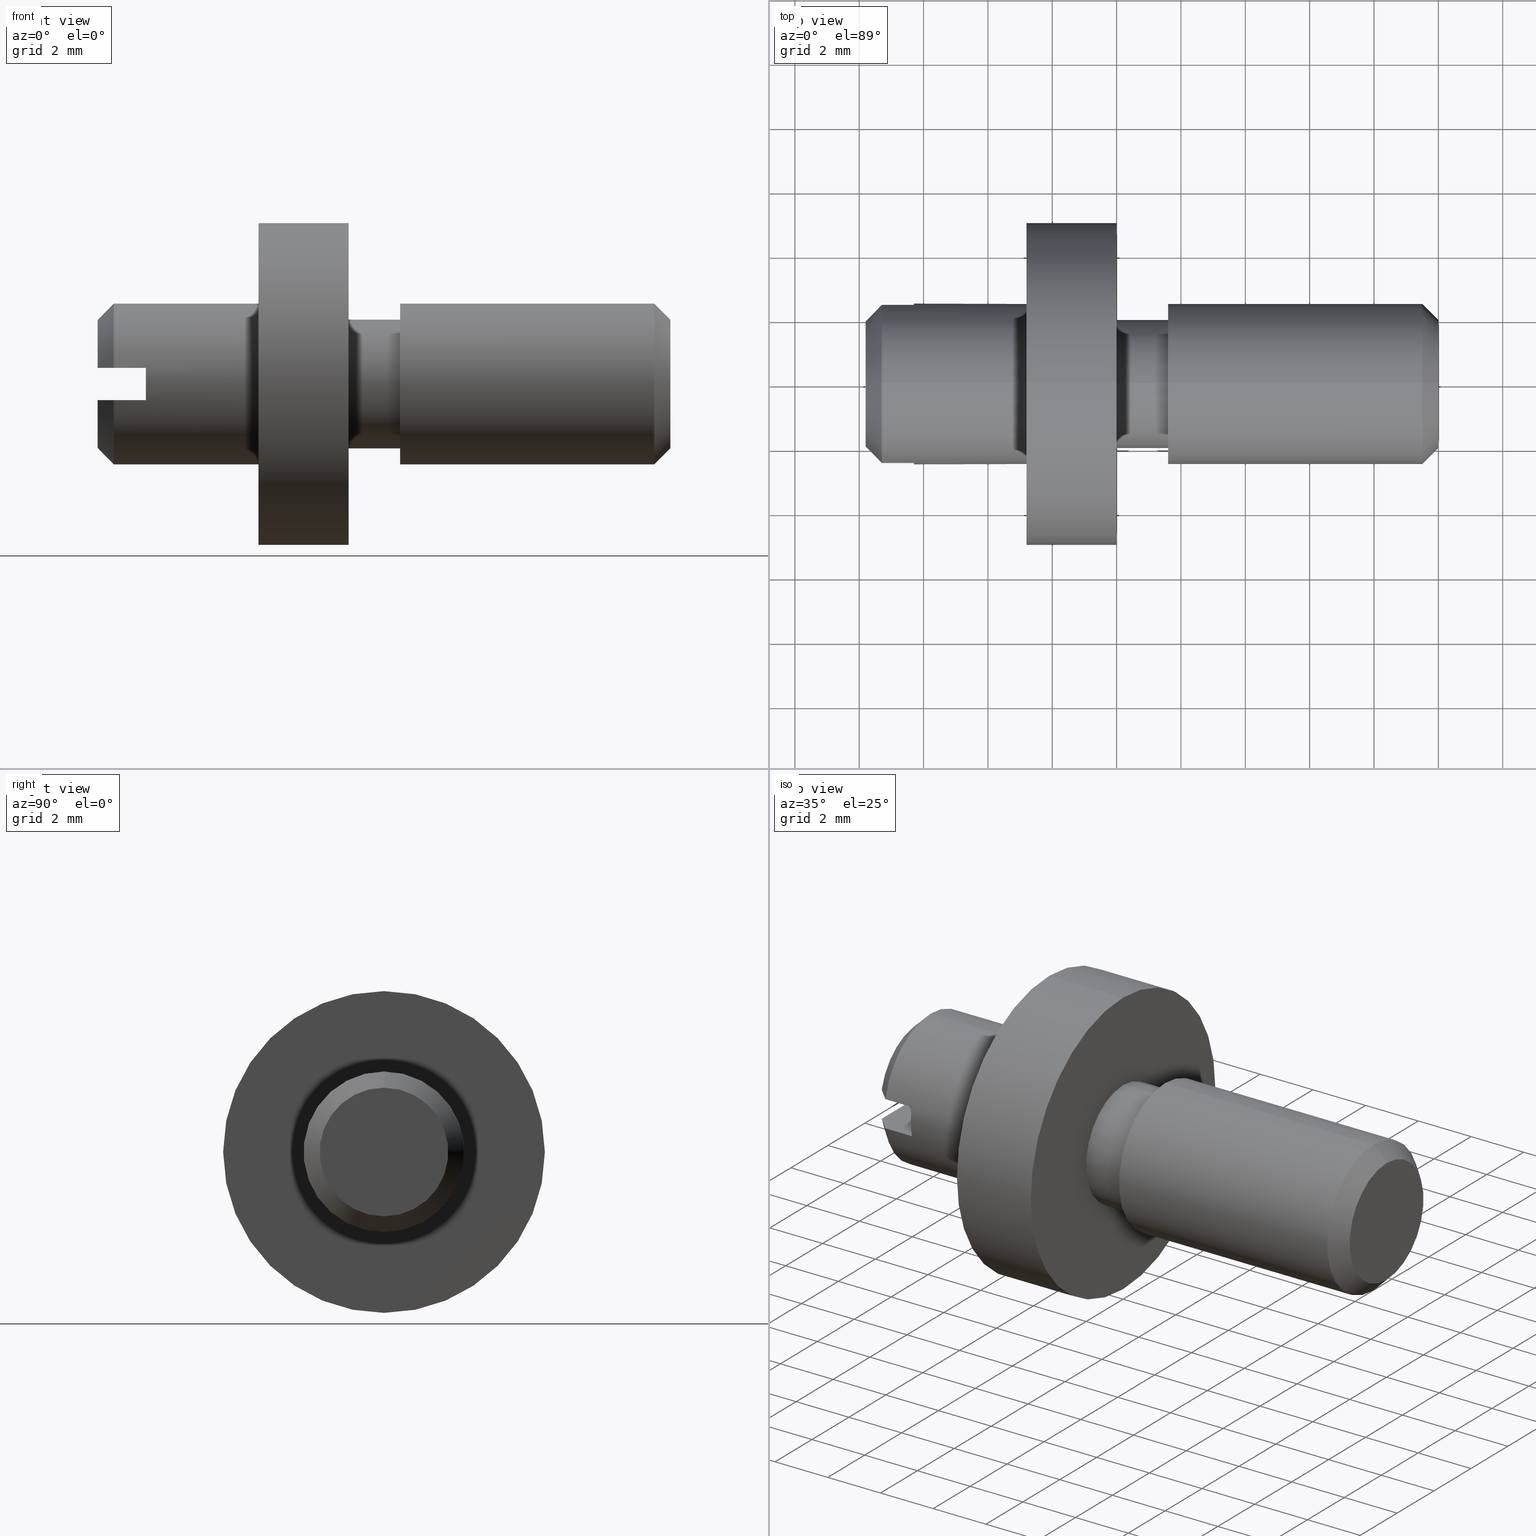
[diagram: canonical four-view strip — front | top / right | iso, engineering-drawing reading convention]
A machine part, canonical four-view strip (front | top / right | iso — engineering-drawing reading convention). The complete STEP part file that produces these views, byte-faithful:
ISO-10303-21;
HEADER;

FILE_DESCRIPTION( (''), '2;1');
FILE_NAME ('PC002.10632.TH_184_1691.stp','2025-08-18T19:12:03',(''),(''),'spGate 19.8.4 (****-****-****-****)','','');

FILE_SCHEMA (('AUTOMOTIVE_DESIGN'));
ENDSEC;

DATA;
#10=(GEOMETRIC_REPRESENTATION_CONTEXT(3) GLOBAL_UNCERTAINTY_ASSIGNED_CONTEXT((#11)) GLOBAL_UNIT_ASSIGNED_CONTEXT((#12,#13,#14)) REPRESENTATION_CONTEXT('ID1','3D'));
#11=UNCERTAINTY_MEASURE_WITH_UNIT(LENGTH_MEASURE(0.01),#15,'DISTANCE_ACCURACY_VALUE','Maximum model space distance between geometric entities at asserted connectivities');
#12=(NAMED_UNIT(*) SI_UNIT($,.STERADIAN.) SOLID_ANGLE_UNIT());
#13=(CONVERSION_BASED_UNIT('DEGREE',#16) NAMED_UNIT(#17) PLANE_ANGLE_UNIT());
#14=(LENGTH_UNIT() NAMED_UNIT(*) SI_UNIT(.MILLI.,.METRE.));
#15=(LENGTH_UNIT() NAMED_UNIT(*) SI_UNIT(.MILLI.,.METRE.));
#16=PLANE_ANGLE_MEASURE_WITH_UNIT(PLANE_ANGLE_MEASURE(0.01745329252),#18);
#17=DIMENSIONAL_EXPONENTS(0.0,0.0,0.0,0.0,0.0,0.0,0.0);
#18=(NAMED_UNIT(*) PLANE_ANGLE_UNIT() SI_UNIT($,.RADIAN.));
#19=MANIFOLD_SOLID_BREP('\X2\30D430F3\X0\',#31);
#20=ADVANCED_BREP_SHAPE_REPRESENTATION('',(#19),#10);
#21=APPLICATION_CONTEXT('');
#22=APPLICATION_PROTOCOL_DEFINITION('International Standard','automotive_design',1999,#21);
#23=PRODUCT_DEFINITION_CONTEXT('',#21,'design');
#24=PRODUCT_CONTEXT('',#21,'mechanical');
#25=PRODUCT('','','',(#24));
#26=PRODUCT_DEFINITION_FORMATION_WITH_SPECIFIED_SOURCE('','',#25,.NOT_KNOWN.);
#27=PRODUCT_RELATED_PRODUCT_CATEGORY('tool','tool',(#25));
#28=PRODUCT_DEFINITION('','',#26,#23);
#29=PRODUCT_DEFINITION_SHAPE('','',#28);
#30=SHAPE_DEFINITION_REPRESENTATION(#29,#20);
#31=CLOSED_SHELL('',(#40,#41,#42,#43,#44,#45,#46,#47,#48,#49,#50,#51,#52,#53,#54,#55,#56,#57,#58,#59,#60));
#32=COLOUR_RGB('',0.00000000000E+00,0.00000000000E+00,0.00000000000E+00);
#33=FILL_AREA_STYLE_COLOUR('',#32);
#34=FILL_AREA_STYLE('',(#33));
#35=SURFACE_STYLE_FILL_AREA(#34);
#36=SURFACE_SIDE_STYLE('',(#35));
#37=SURFACE_STYLE_USAGE(.BOTH.,#36);
#38=PRESENTATION_STYLE_ASSIGNMENT((#37));
#39=STYLED_ITEM('',(#38),#19);
#40=ADVANCED_FACE('',(#62),#61,.T.);
#41=ADVANCED_FACE('',(#72),#71,.T.);
#42=ADVANCED_FACE('',(#82),#81,.F.);
#43=ADVANCED_FACE('',(#92),#91,.T.);
#44=ADVANCED_FACE('',(#102),#101,.F.);
#45=ADVANCED_FACE('',(#112),#111,.F.);
#46=ADVANCED_FACE('',(#122,#123),#121,.F.);
#47=ADVANCED_FACE('',(#133,#134),#132,.F.);
#48=ADVANCED_FACE('',(#144,#145),#143,.F.);
#49=ADVANCED_FACE('',(#155),#154,.T.);
#50=ADVANCED_FACE('',(#165),#164,.T.);
#51=ADVANCED_FACE('',(#175),#174,.T.);
#52=ADVANCED_FACE('',(#185),#184,.T.);
#53=ADVANCED_FACE('',(#195),#194,.T.);
#54=ADVANCED_FACE('',(#205),#204,.T.);
#55=ADVANCED_FACE('',(#215),#214,.T.);
#56=ADVANCED_FACE('',(#225),#224,.T.);
#57=ADVANCED_FACE('',(#235),#234,.T.);
#58=ADVANCED_FACE('',(#245),#244,.T.);
#59=ADVANCED_FACE('',(#255),#254,.T.);
#60=ADVANCED_FACE('',(#265),#264,.T.);
#61=PLANE('',#277);
#62=FACE_OUTER_BOUND('',#278,.T.);
#63=COLOUR_RGB('',1.00000000000E+00,1.00000000000E+00,1.00000000000E+00);
#64=FILL_AREA_STYLE_COLOUR('',#63);
#65=FILL_AREA_STYLE('',(#64));
#66=SURFACE_STYLE_FILL_AREA(#65);
#67=SURFACE_SIDE_STYLE('',(#66));
#68=SURFACE_STYLE_USAGE(.BOTH.,#67);
#69=PRESENTATION_STYLE_ASSIGNMENT((#68));
#70=STYLED_ITEM('',(#69),#40);
#71=PLANE('',#282);
#72=FACE_OUTER_BOUND('',#283,.T.);
#73=COLOUR_RGB('',1.00000000000E+00,1.00000000000E+00,1.00000000000E+00);
#74=FILL_AREA_STYLE_COLOUR('',#73);
#75=FILL_AREA_STYLE('',(#74));
#76=SURFACE_STYLE_FILL_AREA(#75);
#77=SURFACE_SIDE_STYLE('',(#76));
#78=SURFACE_STYLE_USAGE(.BOTH.,#77);
#79=PRESENTATION_STYLE_ASSIGNMENT((#78));
#80=STYLED_ITEM('',(#79),#41);
#81=PLANE('',#287);
#82=FACE_OUTER_BOUND('',#288,.T.);
#83=COLOUR_RGB('',1.00000000000E+00,1.00000000000E+00,1.00000000000E+00);
#84=FILL_AREA_STYLE_COLOUR('',#83);
#85=FILL_AREA_STYLE('',(#84));
#86=SURFACE_STYLE_FILL_AREA(#85);
#87=SURFACE_SIDE_STYLE('',(#86));
#88=SURFACE_STYLE_USAGE(.BOTH.,#87);
#89=PRESENTATION_STYLE_ASSIGNMENT((#88));
#90=STYLED_ITEM('',(#89),#42);
#91=( BOUNDED_SURFACE() B_SPLINE_SURFACE( 2,1,((#289,#290),(#291,#292),(#293,#294),(#295,#296),(#297,#298)), .UNSPECIFIED.,.F.,.F.,.F.) B_SPLINE_SURFACE_WITH_KNOTS((3,2,3),(2,2),(0.00000000000E+00,5.00000000000E-01,1.00000000000E+00),(0.00000000000E+00,1.00000000000E+00), .UNSPECIFIED. ) GEOMETRIC_REPRESENTATION_ITEM() RATIONAL_B_SPLINE_SURFACE(((1.00000000000E+00,1.00000000000E+00),(7.07108946716E-01,7.07108946716E-01),(1.00000000000E+00,1.00000000000E+00),(7.07108946716E-01,7.07108946716E-01),(1.00000000000E+00,1.00000000000E+00))) REPRESENTATION_ITEM('') SURFACE() );
#92=FACE_OUTER_BOUND('',#299,.T.);
#93=COLOUR_RGB('',1.00000000000E+00,1.00000000000E+00,1.00000000000E+00);
#94=FILL_AREA_STYLE_COLOUR('',#93);
#95=FILL_AREA_STYLE('',(#94));
#96=SURFACE_STYLE_FILL_AREA(#95);
#97=SURFACE_SIDE_STYLE('',(#96));
#98=SURFACE_STYLE_USAGE(.BOTH.,#97);
#99=PRESENTATION_STYLE_ASSIGNMENT((#98));
#100=STYLED_ITEM('',(#99),#43);
#101=PLANE('',#303);
#102=FACE_OUTER_BOUND('',#304,.T.);
#103=COLOUR_RGB('',1.00000000000E+00,1.00000000000E+00,1.00000000000E+00);
#104=FILL_AREA_STYLE_COLOUR('',#103);
#105=FILL_AREA_STYLE('',(#104));
#106=SURFACE_STYLE_FILL_AREA(#105);
#107=SURFACE_SIDE_STYLE('',(#106));
#108=SURFACE_STYLE_USAGE(.BOTH.,#107);
#109=PRESENTATION_STYLE_ASSIGNMENT((#108));
#110=STYLED_ITEM('',(#109),#44);
#111=PLANE('',#308);
#112=FACE_OUTER_BOUND('',#309,.T.);
#113=COLOUR_RGB('',1.00000000000E+00,1.00000000000E+00,1.00000000000E+00);
#114=FILL_AREA_STYLE_COLOUR('',#113);
#115=FILL_AREA_STYLE('',(#114));
#116=SURFACE_STYLE_FILL_AREA(#115);
#117=SURFACE_SIDE_STYLE('',(#116));
#118=SURFACE_STYLE_USAGE(.BOTH.,#117);
#119=PRESENTATION_STYLE_ASSIGNMENT((#118));
#120=STYLED_ITEM('',(#119),#45);
#121=PLANE('',#313);
#122=FACE_OUTER_BOUND('',#314,.T.);
#123=FACE_BOUND('',#315,.T.);
#124=COLOUR_RGB('',1.00000000000E+00,1.00000000000E+00,1.00000000000E+00);
#125=FILL_AREA_STYLE_COLOUR('',#124);
#126=FILL_AREA_STYLE('',(#125));
#127=SURFACE_STYLE_FILL_AREA(#126);
#128=SURFACE_SIDE_STYLE('',(#127));
#129=SURFACE_STYLE_USAGE(.BOTH.,#128);
#130=PRESENTATION_STYLE_ASSIGNMENT((#129));
#131=STYLED_ITEM('',(#130),#46);
#132=PLANE('',#319);
#133=FACE_OUTER_BOUND('',#320,.T.);
#134=FACE_BOUND('',#321,.T.);
#135=COLOUR_RGB('',1.00000000000E+00,1.00000000000E+00,1.00000000000E+00);
#136=FILL_AREA_STYLE_COLOUR('',#135);
#137=FILL_AREA_STYLE('',(#136));
#138=SURFACE_STYLE_FILL_AREA(#137);
#139=SURFACE_SIDE_STYLE('',(#138));
#140=SURFACE_STYLE_USAGE(.BOTH.,#139);
#141=PRESENTATION_STYLE_ASSIGNMENT((#140));
#142=STYLED_ITEM('',(#141),#47);
#143=PLANE('',#325);
#144=FACE_OUTER_BOUND('',#326,.T.);
#145=FACE_BOUND('',#327,.T.);
#146=COLOUR_RGB('',1.00000000000E+00,1.00000000000E+00,1.00000000000E+00);
#147=FILL_AREA_STYLE_COLOUR('',#146);
#148=FILL_AREA_STYLE('',(#147));
#149=SURFACE_STYLE_FILL_AREA(#148);
#150=SURFACE_SIDE_STYLE('',(#149));
#151=SURFACE_STYLE_USAGE(.BOTH.,#150);
#152=PRESENTATION_STYLE_ASSIGNMENT((#151));
#153=STYLED_ITEM('',(#152),#48);
#154=PLANE('',#331);
#155=FACE_OUTER_BOUND('',#332,.T.);
#156=COLOUR_RGB('',1.00000000000E+00,1.00000000000E+00,1.00000000000E+00);
#157=FILL_AREA_STYLE_COLOUR('',#156);
#158=FILL_AREA_STYLE('',(#157));
#159=SURFACE_STYLE_FILL_AREA(#158);
#160=SURFACE_SIDE_STYLE('',(#159));
#161=SURFACE_STYLE_USAGE(.BOTH.,#160);
#162=PRESENTATION_STYLE_ASSIGNMENT((#161));
#163=STYLED_ITEM('',(#162),#49);
#164=( BOUNDED_SURFACE() B_SPLINE_SURFACE( 2,1,((#333,#334),(#335,#336),(#337,#338),(#339,#340),(#341,#342)), .UNSPECIFIED.,.F.,.F.,.F.) B_SPLINE_SURFACE_WITH_KNOTS((3,2,3),(2,2),(0.00000000000E+00,5.00000000000E-01,1.00000000000E+00),(0.00000000000E+00,1.00000000000E+00), .UNSPECIFIED. ) GEOMETRIC_REPRESENTATION_ITEM() RATIONAL_B_SPLINE_SURFACE(((1.00000000000E+00,1.00000000000E+00),(7.07108946716E-01,7.07108946716E-01),(1.00000000000E+00,1.00000000000E+00),(7.07108946716E-01,7.07108946716E-01),(1.00000000000E+00,1.00000000000E+00))) REPRESENTATION_ITEM('') SURFACE() );
#165=FACE_OUTER_BOUND('',#343,.T.);
#166=COLOUR_RGB('',1.00000000000E+00,1.00000000000E+00,1.00000000000E+00);
#167=FILL_AREA_STYLE_COLOUR('',#166);
#168=FILL_AREA_STYLE('',(#167));
#169=SURFACE_STYLE_FILL_AREA(#168);
#170=SURFACE_SIDE_STYLE('',(#169));
#171=SURFACE_STYLE_USAGE(.BOTH.,#170);
#172=PRESENTATION_STYLE_ASSIGNMENT((#171));
#173=STYLED_ITEM('',(#172),#50);
#174=CYLINDRICAL_SURFACE('',#347,5.00000000000E+00);
#175=FACE_OUTER_BOUND('',#348,.T.);
#176=COLOUR_RGB('',1.00000000000E+00,1.00000000000E+00,1.00000000000E+00);
#177=FILL_AREA_STYLE_COLOUR('',#176);
#178=FILL_AREA_STYLE('',(#177));
#179=SURFACE_STYLE_FILL_AREA(#178);
#180=SURFACE_SIDE_STYLE('',(#179));
#181=SURFACE_STYLE_USAGE(.BOTH.,#180);
#182=PRESENTATION_STYLE_ASSIGNMENT((#181));
#183=STYLED_ITEM('',(#182),#51);
#184=CYLINDRICAL_SURFACE('',#352,5.00000000000E+00);
#185=FACE_OUTER_BOUND('',#353,.T.);
#186=COLOUR_RGB('',1.00000000000E+00,1.00000000000E+00,1.00000000000E+00);
#187=FILL_AREA_STYLE_COLOUR('',#186);
#188=FILL_AREA_STYLE('',(#187));
#189=SURFACE_STYLE_FILL_AREA(#188);
#190=SURFACE_SIDE_STYLE('',(#189));
#191=SURFACE_STYLE_USAGE(.BOTH.,#190);
#192=PRESENTATION_STYLE_ASSIGNMENT((#191));
#193=STYLED_ITEM('',(#192),#52);
#194=CYLINDRICAL_SURFACE('',#357,2.00000000000E+00);
#195=FACE_OUTER_BOUND('',#358,.T.);
#196=COLOUR_RGB('',1.00000000000E+00,1.00000000000E+00,1.00000000000E+00);
#197=FILL_AREA_STYLE_COLOUR('',#196);
#198=FILL_AREA_STYLE('',(#197));
#199=SURFACE_STYLE_FILL_AREA(#198);
#200=SURFACE_SIDE_STYLE('',(#199));
#201=SURFACE_STYLE_USAGE(.BOTH.,#200);
#202=PRESENTATION_STYLE_ASSIGNMENT((#201));
#203=STYLED_ITEM('',(#202),#53);
#204=CYLINDRICAL_SURFACE('',#362,2.00000000000E+00);
#205=FACE_OUTER_BOUND('',#363,.T.);
#206=COLOUR_RGB('',1.00000000000E+00,1.00000000000E+00,1.00000000000E+00);
#207=FILL_AREA_STYLE_COLOUR('',#206);
#208=FILL_AREA_STYLE('',(#207));
#209=SURFACE_STYLE_FILL_AREA(#208);
#210=SURFACE_SIDE_STYLE('',(#209));
#211=SURFACE_STYLE_USAGE(.BOTH.,#210);
#212=PRESENTATION_STYLE_ASSIGNMENT((#211));
#213=STYLED_ITEM('',(#212),#54);
#214=CYLINDRICAL_SURFACE('',#367,2.50000000001E+00);
#215=FACE_OUTER_BOUND('',#368,.T.);
#216=COLOUR_RGB('',1.00000000000E+00,1.00000000000E+00,1.00000000000E+00);
#217=FILL_AREA_STYLE_COLOUR('',#216);
#218=FILL_AREA_STYLE('',(#217));
#219=SURFACE_STYLE_FILL_AREA(#218);
#220=SURFACE_SIDE_STYLE('',(#219));
#221=SURFACE_STYLE_USAGE(.BOTH.,#220);
#222=PRESENTATION_STYLE_ASSIGNMENT((#221));
#223=STYLED_ITEM('',(#222),#55);
#224=CYLINDRICAL_SURFACE('',#372,2.50000000001E+00);
#225=FACE_OUTER_BOUND('',#373,.T.);
#226=COLOUR_RGB('',1.00000000000E+00,1.00000000000E+00,1.00000000000E+00);
#227=FILL_AREA_STYLE_COLOUR('',#226);
#228=FILL_AREA_STYLE('',(#227));
#229=SURFACE_STYLE_FILL_AREA(#228);
#230=SURFACE_SIDE_STYLE('',(#229));
#231=SURFACE_STYLE_USAGE(.BOTH.,#230);
#232=PRESENTATION_STYLE_ASSIGNMENT((#231));
#233=STYLED_ITEM('',(#232),#56);
#234=CYLINDRICAL_SURFACE('',#377,2.50000000000E+00);
#235=FACE_OUTER_BOUND('',#378,.T.);
#236=COLOUR_RGB('',1.00000000000E+00,1.00000000000E+00,1.00000000000E+00);
#237=FILL_AREA_STYLE_COLOUR('',#236);
#238=FILL_AREA_STYLE('',(#237));
#239=SURFACE_STYLE_FILL_AREA(#238);
#240=SURFACE_SIDE_STYLE('',(#239));
#241=SURFACE_STYLE_USAGE(.BOTH.,#240);
#242=PRESENTATION_STYLE_ASSIGNMENT((#241));
#243=STYLED_ITEM('',(#242),#57);
#244=CYLINDRICAL_SURFACE('',#382,2.50000000000E+00);
#245=FACE_OUTER_BOUND('',#383,.T.);
#246=COLOUR_RGB('',1.00000000000E+00,1.00000000000E+00,1.00000000000E+00);
#247=FILL_AREA_STYLE_COLOUR('',#246);
#248=FILL_AREA_STYLE('',(#247));
#249=SURFACE_STYLE_FILL_AREA(#248);
#250=SURFACE_SIDE_STYLE('',(#249));
#251=SURFACE_STYLE_USAGE(.BOTH.,#250);
#252=PRESENTATION_STYLE_ASSIGNMENT((#251));
#253=STYLED_ITEM('',(#252),#58);
#254=( BOUNDED_SURFACE() B_SPLINE_SURFACE( 2,1,((#384,#385),(#386,#387),(#388,#389),(#390,#391),(#392,#393)), .UNSPECIFIED.,.F.,.F.,.F.) B_SPLINE_SURFACE_WITH_KNOTS((3,2,3),(2,2),(0.00000000000E+00,5.00000000000E-01,1.00000000000E+00),(0.00000000000E+00,1.00000000000E+00), .UNSPECIFIED. ) GEOMETRIC_REPRESENTATION_ITEM() RATIONAL_B_SPLINE_SURFACE(((1.00000000000E+00,1.00000000000E+00),(7.07106781187E-01,7.07106781187E-01),(1.00000000000E+00,1.00000000000E+00),(7.07106781187E-01,7.07106781187E-01),(1.00000000000E+00,1.00000000000E+00))) REPRESENTATION_ITEM('') SURFACE() );
#255=FACE_OUTER_BOUND('',#394,.T.);
#256=COLOUR_RGB('',1.00000000000E+00,1.00000000000E+00,1.00000000000E+00);
#257=FILL_AREA_STYLE_COLOUR('',#256);
#258=FILL_AREA_STYLE('',(#257));
#259=SURFACE_STYLE_FILL_AREA(#258);
#260=SURFACE_SIDE_STYLE('',(#259));
#261=SURFACE_STYLE_USAGE(.BOTH.,#260);
#262=PRESENTATION_STYLE_ASSIGNMENT((#261));
#263=STYLED_ITEM('',(#262),#59);
#264=( BOUNDED_SURFACE() B_SPLINE_SURFACE( 2,1,((#395,#396),(#397,#398),(#399,#400),(#401,#402),(#403,#404)), .UNSPECIFIED.,.F.,.F.,.F.) B_SPLINE_SURFACE_WITH_KNOTS((3,2,3),(2,2),(0.00000000000E+00,5.00000000000E-01,1.00000000000E+00),(0.00000000000E+00,1.00000000000E+00), .UNSPECIFIED. ) GEOMETRIC_REPRESENTATION_ITEM() RATIONAL_B_SPLINE_SURFACE(((1.00000000000E+00,1.00000000000E+00),(7.07106781187E-01,7.07106781187E-01),(1.00000000000E+00,1.00000000000E+00),(7.07106781187E-01,7.07106781187E-01),(1.00000000000E+00,1.00000000000E+00))) REPRESENTATION_ITEM('') SURFACE() );
#265=FACE_OUTER_BOUND('',#405,.T.);
#266=COLOUR_RGB('',1.00000000000E+00,1.00000000000E+00,1.00000000000E+00);
#267=FILL_AREA_STYLE_COLOUR('',#266);
#268=FILL_AREA_STYLE('',(#267));
#269=SURFACE_STYLE_FILL_AREA(#268);
#270=SURFACE_SIDE_STYLE('',(#269));
#271=SURFACE_STYLE_USAGE(.BOTH.,#270);
#272=PRESENTATION_STYLE_ASSIGNMENT((#271));
#273=STYLED_ITEM('',(#272),#60);
#274=CARTESIAN_POINT('',(-1.79500000000E+01,-2.93938769135E+00,-5.00000000000E-01));
#275=DIRECTION('',(0.00000000000E+00,-0.00000000000E+00,1.00000000000E+00));
#276=DIRECTION('',(1.00000000000E+00,0.00000000000E+00,-0.00000000000E+00));
#277=AXIS2_PLACEMENT_3D('',#274,#275,#276);
#278=EDGE_LOOP('',(#406,#407,#408,#409,#410,#411));
#279=CARTESIAN_POINT('',(-1.61500000000E+01,-2.93938769135E+00,5.00000000000E-01));
#280=DIRECTION('',(0.00000000000E+00,0.00000000000E+00,-1.00000000000E+00));
#281=DIRECTION('',(-1.00000000000E+00,0.00000000000E+00,0.00000000000E+00));
#282=AXIS2_PLACEMENT_3D('',#279,#280,#281);
#283=EDGE_LOOP('',(#412,#413,#414,#415,#416,#417));
#284=CARTESIAN_POINT('',(-1.78000000000E+01,-2.32379000774E+00,-3.49999999999E-01));
#285=DIRECTION('',(1.00000000000E+00,0.00000000000E+00,0.00000000000E+00));
#286=DIRECTION('',(0.00000000000E+00,0.00000000000E+00,-1.00000000000E+00));
#287=AXIS2_PLACEMENT_3D('',#284,#285,#286);
#288=EDGE_LOOP('',(#418,#419));
#289=CARTESIAN_POINT('',(-1.98000000000E+01,-1.07665434047E-12,9.27503995350E-13));
#290=CARTESIAN_POINT('',(-1.62644085033E+01,-3.46418107770E+00,-7.07005440379E-01));
#291=CARTESIAN_POINT('',(-1.98000000000E+01,-1.07665434047E-12,9.27503995350E-13));
#292=CARTESIAN_POINT('',(-1.62644085033E+01,-2.75717996775E+00,-4.17116529985E+00));
#293=CARTESIAN_POINT('',(-1.98000000000E+01,-1.07665434047E-12,9.27503995350E-13));
#294=CARTESIAN_POINT('',(-1.62644085033E+01,7.06984222076E-01,-3.46418540808E+00));
#295=CARTESIAN_POINT('',(-1.98000000000E+01,-1.07665434047E-12,9.27503995350E-13));
#296=CARTESIAN_POINT('',(-1.62644085033E+01,4.17114841191E+00,-2.75720551630E+00));
#297=CARTESIAN_POINT('',(-1.98000000000E+01,-1.07665434047E-12,9.27503995350E-13));
#298=CARTESIAN_POINT('',(-1.62644085033E+01,3.46418973833E+00,7.06963003749E-01));
#299=EDGE_LOOP('',(#420,#421,#422,#423,#424));
#300=CARTESIAN_POINT('',(-1.78000000000E+01,-2.32379000774E+00,2.15000000001E+00));
#301=DIRECTION('',(1.00000000000E+00,0.00000000000E+00,0.00000000000E+00));
#302=DIRECTION('',(0.00000000000E+00,0.00000000000E+00,-1.00000000000E+00));
#303=AXIS2_PLACEMENT_3D('',#300,#301,#302);
#304=EDGE_LOOP('',(#425,#426));
#305=CARTESIAN_POINT('',(0.00000000000E+00,-4.15692193817E+00,-4.60000000000E+00));
#306=DIRECTION('',(-1.00000000000E+00,0.00000000000E+00,0.00000000000E+00));
#307=DIRECTION('',(0.00000000000E+00,0.00000000000E+00,1.00000000000E+00));
#308=AXIS2_PLACEMENT_3D('',#305,#306,#307);
#309=EDGE_LOOP('',(#427,#428));
#310=CARTESIAN_POINT('',(-8.40000000000E+00,-5.19615242271E+00,5.75000000000E+00));
#311=DIRECTION('',(1.00000000000E+00,0.00000000000E+00,0.00000000000E+00));
#312=DIRECTION('',(0.00000000000E+00,0.00000000000E+00,-1.00000000000E+00));
#313=AXIS2_PLACEMENT_3D('',#310,#311,#312);
#314=EDGE_LOOP('',(#429,#430));
#315=EDGE_LOOP('',(#431,#432));
#316=CARTESIAN_POINT('',(-1.00000000000E+01,-1.03923048454E+01,-1.15000000000E+01));
#317=DIRECTION('',(-1.00000000000E+00,0.00000000000E+00,0.00000000000E+00));
#318=DIRECTION('',(0.00000000000E+00,0.00000000000E+00,1.00000000000E+00));
#319=AXIS2_PLACEMENT_3D('',#316,#317,#318);
#320=EDGE_LOOP('',(#433,#434));
#321=EDGE_LOOP('',(#435,#436));
#322=CARTESIAN_POINT('',(-1.28000000000E+01,-1.03923048454E+01,1.15000000000E+01));
#323=DIRECTION('',(1.00000000000E+00,0.00000000000E+00,0.00000000000E+00));
#324=DIRECTION('',(0.00000000000E+00,0.00000000000E+00,-1.00000000000E+00));
#325=AXIS2_PLACEMENT_3D('',#322,#323,#324);
#326=EDGE_LOOP('',(#437,#438));
#327=EDGE_LOOP('',(#439,#440));
#328=CARTESIAN_POINT('',(-1.63000000000E+01,-3.06186217848E+00,-6.00000000001E-01));
#329=DIRECTION('',(-1.00000000000E+00,0.00000000000E+00,0.00000000000E+00));
#330=DIRECTION('',(0.00000000000E+00,0.00000000000E+00,1.00000000000E+00));
#331=AXIS2_PLACEMENT_3D('',#328,#329,#330);
#332=EDGE_LOOP('',(#441,#442,#443,#444));
#333=CARTESIAN_POINT('',(-1.98000000000E+01,1.07665434047E-12,-9.27503995350E-13));
#334=CARTESIAN_POINT('',(-1.62644085033E+01,3.46418107770E+00,7.07005440379E-01));
#335=CARTESIAN_POINT('',(-1.98000000000E+01,1.07665434047E-12,-9.27503995350E-13));
#336=CARTESIAN_POINT('',(-1.62644085033E+01,2.75717996775E+00,4.17116529985E+00));
#337=CARTESIAN_POINT('',(-1.98000000000E+01,1.07665434047E-12,-9.27503995350E-13));
#338=CARTESIAN_POINT('',(-1.62644085033E+01,-7.06984222076E-01,3.46418540808E+00));
#339=CARTESIAN_POINT('',(-1.98000000000E+01,1.07665434047E-12,-9.27503995350E-13));
#340=CARTESIAN_POINT('',(-1.62644085033E+01,-4.17114841191E+00,2.75720551630E+00));
#341=CARTESIAN_POINT('',(-1.98000000000E+01,1.07665434047E-12,-9.27503995350E-13));
#342=CARTESIAN_POINT('',(-1.62644085033E+01,-3.46418973833E+00,-7.06963003749E-01));
#343=EDGE_LOOP('',(#445,#446,#447,#448,#449));
#344=CARTESIAN_POINT('',(-1.14000000954E+01,0.00000000000E+00,0.00000000000E+00));
#345=DIRECTION('',(-1.00000000000E+00,-0.00000000000E+00,0.00000000000E+00));
#346=DIRECTION('',(0.00000000000E+00,-0.00000000000E+00,1.00000000000E+00));
#347=AXIS2_PLACEMENT_3D('',#344,#345,#346);
#348=EDGE_LOOP('',(#450,#451,#452,#453));
#349=CARTESIAN_POINT('',(-1.14000000954E+01,0.00000000000E+00,0.00000000000E+00));
#350=DIRECTION('',(-1.00000000000E+00,-0.00000000000E+00,0.00000000000E+00));
#351=DIRECTION('',(0.00000000000E+00,-0.00000000000E+00,1.00000000000E+00));
#352=AXIS2_PLACEMENT_3D('',#349,#350,#351);
#353=EDGE_LOOP('',(#454,#455,#456,#457));
#354=CARTESIAN_POINT('',(-9.19999980927E+00,0.00000000000E+00,0.00000000000E+00));
#355=DIRECTION('',(-1.00000000000E+00,-0.00000000000E+00,0.00000000000E+00));
#356=DIRECTION('',(0.00000000000E+00,-0.00000000000E+00,1.00000000000E+00));
#357=AXIS2_PLACEMENT_3D('',#354,#355,#356);
#358=EDGE_LOOP('',(#458,#459,#460,#461));
#359=CARTESIAN_POINT('',(-9.19999980927E+00,0.00000000000E+00,0.00000000000E+00));
#360=DIRECTION('',(-1.00000000000E+00,-0.00000000000E+00,0.00000000000E+00));
#361=DIRECTION('',(0.00000000000E+00,-0.00000000000E+00,1.00000000000E+00));
#362=AXIS2_PLACEMENT_3D('',#359,#360,#361);
#363=EDGE_LOOP('',(#462,#463,#464,#465));
#364=CARTESIAN_POINT('',(-1.50499997139E+01,0.00000000000E+00,0.00000000000E+00));
#365=DIRECTION('',(-1.00000000000E+00,0.00000000000E+00,-0.00000000000E+00));
#366=DIRECTION('',(-0.00000000000E+00,-0.00000000000E+00,1.00000000000E+00));
#367=AXIS2_PLACEMENT_3D('',#364,#365,#366);
#368=EDGE_LOOP('',(#466,#467,#468,#469,#470,#471,#472,#473));
#369=CARTESIAN_POINT('',(-1.50499997139E+01,0.00000000000E+00,0.00000000000E+00));
#370=DIRECTION('',(-1.00000000000E+00,0.00000000000E+00,-0.00000000000E+00));
#371=DIRECTION('',(-0.00000000000E+00,-0.00000000000E+00,1.00000000000E+00));
#372=AXIS2_PLACEMENT_3D('',#369,#370,#371);
#373=EDGE_LOOP('',(#474,#475,#476,#477,#478,#479,#480,#481));
#374=CARTESIAN_POINT('',(-4.44999980927E+00,0.00000000000E+00,0.00000000000E+00));
#375=DIRECTION('',(-1.00000000000E+00,-0.00000000000E+00,0.00000000000E+00));
#376=DIRECTION('',(0.00000000000E+00,-0.00000000000E+00,1.00000000000E+00));
#377=AXIS2_PLACEMENT_3D('',#374,#375,#376);
#378=EDGE_LOOP('',(#482,#483,#484,#485));
#379=CARTESIAN_POINT('',(-4.44999980927E+00,0.00000000000E+00,0.00000000000E+00));
#380=DIRECTION('',(-1.00000000000E+00,-0.00000000000E+00,0.00000000000E+00));
#381=DIRECTION('',(0.00000000000E+00,-0.00000000000E+00,1.00000000000E+00));
#382=AXIS2_PLACEMENT_3D('',#379,#380,#381);
#383=EDGE_LOOP('',(#486,#487,#488,#489));
#384=CARTESIAN_POINT('',(2.00000000000E+00,-1.37772764904E-16,0.00000000000E+00));
#385=CARTESIAN_POINT('',(-1.53553390593E+00,1.35058920675E-15,3.53553390593E+00));
#386=CARTESIAN_POINT('',(2.00000000000E+00,-1.37772764904E-16,0.00000000000E+00));
#387=CARTESIAN_POINT('',(-1.53553390593E+00,3.53553390593E+00,3.53553390593E+00));
#388=CARTESIAN_POINT('',(2.00000000000E+00,-1.37772764904E-16,0.00000000000E+00));
#389=CARTESIAN_POINT('',(-1.53553390593E+00,3.53553390593E+00,-1.27187295760E-15));
#390=CARTESIAN_POINT('',(2.00000000000E+00,-1.37772764904E-16,0.00000000000E+00));
#391=CARTESIAN_POINT('',(-1.53553390593E+00,3.53553390593E+00,-3.53553390593E+00));
#392=CARTESIAN_POINT('',(2.00000000000E+00,-1.37772764904E-16,0.00000000000E+00));
#393=CARTESIAN_POINT('',(-1.53553390593E+00,-1.19315670844E-15,-3.53553390593E+00));
#394=EDGE_LOOP('',(#490,#491,#492,#493));
#395=CARTESIAN_POINT('',(2.00000000000E+00,-1.37772764904E-16,0.00000000000E+00));
#396=CARTESIAN_POINT('',(-1.53553390593E+00,-1.19315670844E-15,-3.53553390593E+00));
#397=CARTESIAN_POINT('',(2.00000000000E+00,-1.37772764904E-16,0.00000000000E+00));
#398=CARTESIAN_POINT('',(-1.53553390593E+00,-3.53553390593E+00,-3.53553390593E+00));
#399=CARTESIAN_POINT('',(2.00000000000E+00,-1.37772764904E-16,0.00000000000E+00));
#400=CARTESIAN_POINT('',(-1.53553390593E+00,-3.53553390593E+00,8.38894929478E-16));
#401=CARTESIAN_POINT('',(2.00000000000E+00,-1.37772764904E-16,0.00000000000E+00));
#402=CARTESIAN_POINT('',(-1.53553390593E+00,-3.53553390593E+00,3.53553390593E+00));
#403=CARTESIAN_POINT('',(2.00000000000E+00,-1.37772764904E-16,0.00000000000E+00));
#404=CARTESIAN_POINT('',(-1.53553390593E+00,4.84633150515E-16,3.53553390593E+00));
#405=EDGE_LOOP('',(#494,#495,#496,#497));
#406=ORIENTED_EDGE('',*,*,#498,.T.);
#407=ORIENTED_EDGE('',*,*,#499,.F.);
#408=ORIENTED_EDGE('',*,*,#500,.T.);
#409=ORIENTED_EDGE('',*,*,#501,.F.);
#410=ORIENTED_EDGE('',*,*,#502,.T.);
#411=ORIENTED_EDGE('',*,*,#503,.T.);
#412=ORIENTED_EDGE('',*,*,#504,.T.);
#413=ORIENTED_EDGE('',*,*,#505,.F.);
#414=ORIENTED_EDGE('',*,*,#506,.T.);
#415=ORIENTED_EDGE('',*,*,#507,.F.);
#416=ORIENTED_EDGE('',*,*,#508,.T.);
#417=ORIENTED_EDGE('',*,*,#509,.T.);
#418=ORIENTED_EDGE('',*,*,#499,.T.);
#419=ORIENTED_EDGE('',*,*,#510,.T.);
#420=ORIENTED_EDGE('',*,*,#498,.F.);
#421=ORIENTED_EDGE('',*,*,#511,.T.);
#422=ORIENTED_EDGE('',*,*,#512,.T.);
#423=ORIENTED_EDGE('',*,*,#500,.F.);
#424=ORIENTED_EDGE('',*,*,#510,.F.);
#425=ORIENTED_EDGE('',*,*,#505,.T.);
#426=ORIENTED_EDGE('',*,*,#513,.T.);
#427=ORIENTED_EDGE('',*,*,#514,.F.);
#428=ORIENTED_EDGE('',*,*,#515,.F.);
#429=ORIENTED_EDGE('',*,*,#516,.T.);
#430=ORIENTED_EDGE('',*,*,#517,.T.);
#431=ORIENTED_EDGE('',*,*,#518,.F.);
#432=ORIENTED_EDGE('',*,*,#519,.F.);
#433=ORIENTED_EDGE('',*,*,#520,.F.);
#434=ORIENTED_EDGE('',*,*,#521,.F.);
#435=ORIENTED_EDGE('',*,*,#522,.T.);
#436=ORIENTED_EDGE('',*,*,#523,.T.);
#437=ORIENTED_EDGE('',*,*,#524,.T.);
#438=ORIENTED_EDGE('',*,*,#525,.T.);
#439=ORIENTED_EDGE('',*,*,#526,.F.);
#440=ORIENTED_EDGE('',*,*,#527,.F.);
#441=ORIENTED_EDGE('',*,*,#508,.F.);
#442=ORIENTED_EDGE('',*,*,#528,.F.);
#443=ORIENTED_EDGE('',*,*,#502,.F.);
#444=ORIENTED_EDGE('',*,*,#529,.F.);
#445=ORIENTED_EDGE('',*,*,#504,.F.);
#446=ORIENTED_EDGE('',*,*,#530,.T.);
#447=ORIENTED_EDGE('',*,*,#531,.T.);
#448=ORIENTED_EDGE('',*,*,#506,.F.);
#449=ORIENTED_EDGE('',*,*,#513,.F.);
#450=ORIENTED_EDGE('',*,*,#525,.F.);
#451=ORIENTED_EDGE('',*,*,#532,.F.);
#452=ORIENTED_EDGE('',*,*,#521,.T.);
#453=ORIENTED_EDGE('',*,*,#533,.T.);
#454=ORIENTED_EDGE('',*,*,#520,.T.);
#455=ORIENTED_EDGE('',*,*,#532,.T.);
#456=ORIENTED_EDGE('',*,*,#524,.F.);
#457=ORIENTED_EDGE('',*,*,#533,.F.);
#458=ORIENTED_EDGE('',*,*,#523,.F.);
#459=ORIENTED_EDGE('',*,*,#534,.F.);
#460=ORIENTED_EDGE('',*,*,#519,.T.);
#461=ORIENTED_EDGE('',*,*,#535,.T.);
#462=ORIENTED_EDGE('',*,*,#518,.T.);
#463=ORIENTED_EDGE('',*,*,#534,.T.);
#464=ORIENTED_EDGE('',*,*,#522,.F.);
#465=ORIENTED_EDGE('',*,*,#535,.F.);
#466=ORIENTED_EDGE('',*,*,#511,.F.);
#467=ORIENTED_EDGE('',*,*,#503,.F.);
#468=ORIENTED_EDGE('',*,*,#528,.T.);
#469=ORIENTED_EDGE('',*,*,#507,.T.);
#470=ORIENTED_EDGE('',*,*,#531,.F.);
#471=ORIENTED_EDGE('',*,*,#536,.F.);
#472=ORIENTED_EDGE('',*,*,#527,.T.);
#473=ORIENTED_EDGE('',*,*,#537,.T.);
#474=ORIENTED_EDGE('',*,*,#526,.T.);
#475=ORIENTED_EDGE('',*,*,#536,.T.);
#476=ORIENTED_EDGE('',*,*,#530,.F.);
#477=ORIENTED_EDGE('',*,*,#509,.F.);
#478=ORIENTED_EDGE('',*,*,#529,.T.);
#479=ORIENTED_EDGE('',*,*,#501,.T.);
#480=ORIENTED_EDGE('',*,*,#512,.F.);
#481=ORIENTED_EDGE('',*,*,#537,.F.);
#482=ORIENTED_EDGE('',*,*,#517,.F.);
#483=ORIENTED_EDGE('',*,*,#538,.F.);
#484=ORIENTED_EDGE('',*,*,#539,.T.);
#485=ORIENTED_EDGE('',*,*,#540,.T.);
#486=ORIENTED_EDGE('',*,*,#541,.T.);
#487=ORIENTED_EDGE('',*,*,#538,.T.);
#488=ORIENTED_EDGE('',*,*,#516,.F.);
#489=ORIENTED_EDGE('',*,*,#540,.F.);
#490=ORIENTED_EDGE('',*,*,#539,.F.);
#491=ORIENTED_EDGE('',*,*,#542,.F.);
#492=ORIENTED_EDGE('',*,*,#515,.T.);
#493=ORIENTED_EDGE('',*,*,#543,.T.);
#494=ORIENTED_EDGE('',*,*,#514,.T.);
#495=ORIENTED_EDGE('',*,*,#542,.T.);
#496=ORIENTED_EDGE('',*,*,#541,.F.);
#497=ORIENTED_EDGE('',*,*,#543,.F.);
#498=EDGE_CURVE('',#544,#545,#546,.T.);
#499=EDGE_CURVE('',#552,#545,#553,.T.);
#500=EDGE_CURVE('',#552,#559,#560,.T.);
#501=EDGE_CURVE('',#566,#559,#567,.T.);
#502=EDGE_CURVE('',#566,#573,#574,.T.);
#503=EDGE_CURVE('',#573,#544,#580,.T.);
#504=EDGE_CURVE('',#586,#587,#588,.T.);
#505=EDGE_CURVE('',#594,#587,#595,.T.);
#506=EDGE_CURVE('',#594,#601,#602,.T.);
#507=EDGE_CURVE('',#608,#601,#609,.T.);
#508=EDGE_CURVE('',#608,#615,#616,.T.);
#509=EDGE_CURVE('',#615,#586,#622,.T.);
#510=EDGE_CURVE('',#545,#552,#628,.T.);
#511=EDGE_CURVE('',#544,#634,#635,.T.);
#512=EDGE_CURVE('',#634,#559,#641,.T.);
#513=EDGE_CURVE('',#587,#594,#647,.T.);
#514=EDGE_CURVE('',#653,#654,#655,.T.);
#515=EDGE_CURVE('',#654,#653,#661,.T.);
#516=EDGE_CURVE('',#667,#668,#669,.T.);
#517=EDGE_CURVE('',#668,#667,#675,.T.);
#518=EDGE_CURVE('',#681,#682,#683,.T.);
#519=EDGE_CURVE('',#682,#681,#689,.T.);
#520=EDGE_CURVE('',#695,#696,#697,.T.);
#521=EDGE_CURVE('',#696,#695,#703,.T.);
#522=EDGE_CURVE('',#709,#710,#711,.T.);
#523=EDGE_CURVE('',#710,#709,#717,.T.);
#524=EDGE_CURVE('',#723,#724,#725,.T.);
#525=EDGE_CURVE('',#724,#723,#731,.T.);
#526=EDGE_CURVE('',#737,#738,#739,.T.);
#527=EDGE_CURVE('',#738,#737,#745,.T.);
#528=EDGE_CURVE('',#573,#608,#751,.T.);
#529=EDGE_CURVE('',#615,#566,#757,.T.);
#530=EDGE_CURVE('',#586,#763,#764,.T.);
#531=EDGE_CURVE('',#763,#601,#770,.T.);
#532=EDGE_CURVE('',#696,#724,#776,.T.);
#533=EDGE_CURVE('',#695,#723,#782,.T.);
#534=EDGE_CURVE('',#682,#710,#788,.T.);
#535=EDGE_CURVE('',#681,#709,#794,.T.);
#536=EDGE_CURVE('',#738,#763,#800,.T.);
#537=EDGE_CURVE('',#737,#634,#806,.T.);
#538=EDGE_CURVE('',#812,#668,#813,.T.);
#539=EDGE_CURVE('',#812,#819,#820,.T.);
#540=EDGE_CURVE('',#819,#667,#826,.T.);
#541=EDGE_CURVE('',#819,#812,#832,.T.);
#542=EDGE_CURVE('',#654,#812,#838,.T.);
#543=EDGE_CURVE('',#653,#819,#844,.T.);
#544=VERTEX_POINT('',#850);
#545=VERTEX_POINT('',#851);
#546=(BOUNDED_CURVE() B_SPLINE_CURVE(3,(#852,#853,#854,#855),.UNSPECIFIED.,.F.,.F.) B_SPLINE_CURVE_WITH_KNOTS((4,4),(4.15931936448E-03,4.87567610379E-03),.UNSPECIFIED.) CURVE() GEOMETRIC_REPRESENTATION_ITEM() RATIONAL_B_SPLINE_CURVE((1.00000000000E+00,1.00000000000E+00,1.00000000000E+00,1.00000000000E+00)) REPRESENTATION_ITEM('') );
#547=COLOUR_RGB('',1.00000000000E+00,1.00000000000E+00,1.00000000000E+00);
#548=DRAUGHTING_PRE_DEFINED_CURVE_FONT('continuous');
#549=CURVE_STYLE( '',#548, POSITIVE_LENGTH_MEASURE(1.00000000000E-06),#547);
#550=PRESENTATION_STYLE_ASSIGNMENT((#549));
#551=STYLED_ITEM('',(#550),#498);
#552=VERTEX_POINT('',#856);
#553=LINE('',#857,#858);
#554=COLOUR_RGB('',1.00000000000E+00,1.00000000000E+00,1.00000000000E+00);
#555=DRAUGHTING_PRE_DEFINED_CURVE_FONT('continuous');
#556=CURVE_STYLE( '',#555, POSITIVE_LENGTH_MEASURE(1.00000000000E-06),#554);
#557=PRESENTATION_STYLE_ASSIGNMENT((#556));
#558=STYLED_ITEM('',(#557),#499);
#559=VERTEX_POINT('',#860);
#560=(BOUNDED_CURVE() B_SPLINE_CURVE(3,(#861,#862,#863,#864),.UNSPECIFIED.,.F.,.F.) B_SPLINE_CURVE_WITH_KNOTS((4,4),(9.83560853679E-03,1.05511258395E-02),.UNSPECIFIED.) CURVE() GEOMETRIC_REPRESENTATION_ITEM() RATIONAL_B_SPLINE_CURVE((1.00000000000E+00,1.00000000000E+00,1.00000000000E+00,1.00000000000E+00)) REPRESENTATION_ITEM('') );
#561=COLOUR_RGB('',1.00000000000E+00,1.00000000000E+00,1.00000000000E+00);
#562=DRAUGHTING_PRE_DEFINED_CURVE_FONT('continuous');
#563=CURVE_STYLE( '',#562, POSITIVE_LENGTH_MEASURE(1.00000000000E-06),#561);
#564=PRESENTATION_STYLE_ASSIGNMENT((#563));
#565=STYLED_ITEM('',(#564),#500);
#566=VERTEX_POINT('',#865);
#567=LINE('',#866,#867);
#568=COLOUR_RGB('',1.00000000000E+00,1.00000000000E+00,1.00000000000E+00);
#569=DRAUGHTING_PRE_DEFINED_CURVE_FONT('continuous');
#570=CURVE_STYLE( '',#569, POSITIVE_LENGTH_MEASURE(1.00000000000E-06),#568);
#571=PRESENTATION_STYLE_ASSIGNMENT((#570));
#572=STYLED_ITEM('',(#571),#501);
#573=VERTEX_POINT('',#869);
#574=LINE('',#870,#871);
#575=COLOUR_RGB('',1.00000000000E+00,1.00000000000E+00,1.00000000000E+00);
#576=DRAUGHTING_PRE_DEFINED_CURVE_FONT('continuous');
#577=CURVE_STYLE( '',#576, POSITIVE_LENGTH_MEASURE(1.00000000000E-06),#575);
#578=PRESENTATION_STYLE_ASSIGNMENT((#577));
#579=STYLED_ITEM('',(#578),#502);
#580=LINE('',#873,#874);
#581=COLOUR_RGB('',1.00000000000E+00,1.00000000000E+00,1.00000000000E+00);
#582=DRAUGHTING_PRE_DEFINED_CURVE_FONT('continuous');
#583=CURVE_STYLE( '',#582, POSITIVE_LENGTH_MEASURE(1.00000000000E-06),#581);
#584=PRESENTATION_STYLE_ASSIGNMENT((#583));
#585=STYLED_ITEM('',(#584),#503);
#586=VERTEX_POINT('',#876);
#587=VERTEX_POINT('',#877);
#588=(BOUNDED_CURVE() B_SPLINE_CURVE(3,(#878,#879,#880,#881),.UNSPECIFIED.,.F.,.F.) B_SPLINE_CURVE_WITH_KNOTS((4,4),(4.15931936448E-03,4.87567610379E-03),.UNSPECIFIED.) CURVE() GEOMETRIC_REPRESENTATION_ITEM() RATIONAL_B_SPLINE_CURVE((1.00000000000E+00,1.00000000000E+00,1.00000000000E+00,1.00000000000E+00)) REPRESENTATION_ITEM('') );
#589=COLOUR_RGB('',1.00000000000E+00,1.00000000000E+00,1.00000000000E+00);
#590=DRAUGHTING_PRE_DEFINED_CURVE_FONT('continuous');
#591=CURVE_STYLE( '',#590, POSITIVE_LENGTH_MEASURE(1.00000000000E-06),#589);
#592=PRESENTATION_STYLE_ASSIGNMENT((#591));
#593=STYLED_ITEM('',(#592),#504);
#594=VERTEX_POINT('',#882);
#595=LINE('',#883,#884);
#596=COLOUR_RGB('',1.00000000000E+00,1.00000000000E+00,1.00000000000E+00);
#597=DRAUGHTING_PRE_DEFINED_CURVE_FONT('continuous');
#598=CURVE_STYLE( '',#597, POSITIVE_LENGTH_MEASURE(1.00000000000E-06),#596);
#599=PRESENTATION_STYLE_ASSIGNMENT((#598));
#600=STYLED_ITEM('',(#599),#505);
#601=VERTEX_POINT('',#886);
#602=(BOUNDED_CURVE() B_SPLINE_CURVE(3,(#887,#888,#889,#890),.UNSPECIFIED.,.F.,.F.) B_SPLINE_CURVE_WITH_KNOTS((4,4),(9.83560853679E-03,1.05511258395E-02),.UNSPECIFIED.) CURVE() GEOMETRIC_REPRESENTATION_ITEM() RATIONAL_B_SPLINE_CURVE((1.00000000000E+00,1.00000000000E+00,1.00000000000E+00,1.00000000000E+00)) REPRESENTATION_ITEM('') );
#603=COLOUR_RGB('',1.00000000000E+00,1.00000000000E+00,1.00000000000E+00);
#604=DRAUGHTING_PRE_DEFINED_CURVE_FONT('continuous');
#605=CURVE_STYLE( '',#604, POSITIVE_LENGTH_MEASURE(1.00000000000E-06),#603);
#606=PRESENTATION_STYLE_ASSIGNMENT((#605));
#607=STYLED_ITEM('',(#606),#506);
#608=VERTEX_POINT('',#891);
#609=LINE('',#892,#893);
#610=COLOUR_RGB('',1.00000000000E+00,1.00000000000E+00,1.00000000000E+00);
#611=DRAUGHTING_PRE_DEFINED_CURVE_FONT('continuous');
#612=CURVE_STYLE( '',#611, POSITIVE_LENGTH_MEASURE(1.00000000000E-06),#610);
#613=PRESENTATION_STYLE_ASSIGNMENT((#612));
#614=STYLED_ITEM('',(#613),#507);
#615=VERTEX_POINT('',#895);
#616=LINE('',#896,#897);
#617=COLOUR_RGB('',1.00000000000E+00,1.00000000000E+00,1.00000000000E+00);
#618=DRAUGHTING_PRE_DEFINED_CURVE_FONT('continuous');
#619=CURVE_STYLE( '',#618, POSITIVE_LENGTH_MEASURE(1.00000000000E-06),#617);
#620=PRESENTATION_STYLE_ASSIGNMENT((#619));
#621=STYLED_ITEM('',(#620),#508);
#622=LINE('',#899,#900);
#623=COLOUR_RGB('',1.00000000000E+00,1.00000000000E+00,1.00000000000E+00);
#624=DRAUGHTING_PRE_DEFINED_CURVE_FONT('continuous');
#625=CURVE_STYLE( '',#624, POSITIVE_LENGTH_MEASURE(1.00000000000E-06),#623);
#626=PRESENTATION_STYLE_ASSIGNMENT((#625));
#627=STYLED_ITEM('',(#626),#509);
#628=CIRCLE('',#905,2.00000000001E+00);
#629=COLOUR_RGB('',1.00000000000E+00,1.00000000000E+00,1.00000000000E+00);
#630=DRAUGHTING_PRE_DEFINED_CURVE_FONT('continuous');
#631=CURVE_STYLE( '',#630, POSITIVE_LENGTH_MEASURE(1.00000000000E-06),#629);
#632=PRESENTATION_STYLE_ASSIGNMENT((#631));
#633=STYLED_ITEM('',(#632),#510);
#634=VERTEX_POINT('',#906);
#635=CIRCLE('',#910,2.50000000001E+00);
#636=COLOUR_RGB('',1.00000000000E+00,1.00000000000E+00,1.00000000000E+00);
#637=DRAUGHTING_PRE_DEFINED_CURVE_FONT('continuous');
#638=CURVE_STYLE( '',#637, POSITIVE_LENGTH_MEASURE(1.00000000000E-06),#636);
#639=PRESENTATION_STYLE_ASSIGNMENT((#638));
#640=STYLED_ITEM('',(#639),#511);
#641=CIRCLE('',#914,2.50000000001E+00);
#642=COLOUR_RGB('',1.00000000000E+00,1.00000000000E+00,1.00000000000E+00);
#643=DRAUGHTING_PRE_DEFINED_CURVE_FONT('continuous');
#644=CURVE_STYLE( '',#643, POSITIVE_LENGTH_MEASURE(1.00000000000E-06),#642);
#645=PRESENTATION_STYLE_ASSIGNMENT((#644));
#646=STYLED_ITEM('',(#645),#512);
#647=CIRCLE('',#918,2.00000000001E+00);
#648=COLOUR_RGB('',1.00000000000E+00,1.00000000000E+00,1.00000000000E+00);
#649=DRAUGHTING_PRE_DEFINED_CURVE_FONT('continuous');
#650=CURVE_STYLE( '',#649, POSITIVE_LENGTH_MEASURE(1.00000000000E-06),#648);
#651=PRESENTATION_STYLE_ASSIGNMENT((#650));
#652=STYLED_ITEM('',(#651),#513);
#653=VERTEX_POINT('',#919);
#654=VERTEX_POINT('',#920);
#655=CIRCLE('',#924,2.00000000000E+00);
#656=COLOUR_RGB('',1.00000000000E+00,1.00000000000E+00,1.00000000000E+00);
#657=DRAUGHTING_PRE_DEFINED_CURVE_FONT('continuous');
#658=CURVE_STYLE( '',#657, POSITIVE_LENGTH_MEASURE(1.00000000000E-06),#656);
#659=PRESENTATION_STYLE_ASSIGNMENT((#658));
#660=STYLED_ITEM('',(#659),#514);
#661=CIRCLE('',#928,2.00000000000E+00);
#662=COLOUR_RGB('',1.00000000000E+00,1.00000000000E+00,1.00000000000E+00);
#663=DRAUGHTING_PRE_DEFINED_CURVE_FONT('continuous');
#664=CURVE_STYLE( '',#663, POSITIVE_LENGTH_MEASURE(1.00000000000E-06),#662);
#665=PRESENTATION_STYLE_ASSIGNMENT((#664));
#666=STYLED_ITEM('',(#665),#515);
#667=VERTEX_POINT('',#929);
#668=VERTEX_POINT('',#930);
#669=CIRCLE('',#934,2.50000000000E+00);
#670=COLOUR_RGB('',1.00000000000E+00,1.00000000000E+00,1.00000000000E+00);
#671=DRAUGHTING_PRE_DEFINED_CURVE_FONT('continuous');
#672=CURVE_STYLE( '',#671, POSITIVE_LENGTH_MEASURE(1.00000000000E-06),#670);
#673=PRESENTATION_STYLE_ASSIGNMENT((#672));
#674=STYLED_ITEM('',(#673),#516);
#675=CIRCLE('',#938,2.50000000000E+00);
#676=COLOUR_RGB('',1.00000000000E+00,1.00000000000E+00,1.00000000000E+00);
#677=DRAUGHTING_PRE_DEFINED_CURVE_FONT('continuous');
#678=CURVE_STYLE( '',#677, POSITIVE_LENGTH_MEASURE(1.00000000000E-06),#676);
#679=PRESENTATION_STYLE_ASSIGNMENT((#678));
#680=STYLED_ITEM('',(#679),#517);
#681=VERTEX_POINT('',#939);
#682=VERTEX_POINT('',#940);
#683=CIRCLE('',#944,2.00000000000E+00);
#684=COLOUR_RGB('',1.00000000000E+00,1.00000000000E+00,1.00000000000E+00);
#685=DRAUGHTING_PRE_DEFINED_CURVE_FONT('continuous');
#686=CURVE_STYLE( '',#685, POSITIVE_LENGTH_MEASURE(1.00000000000E-06),#684);
#687=PRESENTATION_STYLE_ASSIGNMENT((#686));
#688=STYLED_ITEM('',(#687),#518);
#689=CIRCLE('',#948,2.00000000000E+00);
#690=COLOUR_RGB('',1.00000000000E+00,1.00000000000E+00,1.00000000000E+00);
#691=DRAUGHTING_PRE_DEFINED_CURVE_FONT('continuous');
#692=CURVE_STYLE( '',#691, POSITIVE_LENGTH_MEASURE(1.00000000000E-06),#690);
#693=PRESENTATION_STYLE_ASSIGNMENT((#692));
#694=STYLED_ITEM('',(#693),#519);
#695=VERTEX_POINT('',#949);
#696=VERTEX_POINT('',#950);
#697=CIRCLE('',#954,5.00000000000E+00);
#698=COLOUR_RGB('',1.00000000000E+00,1.00000000000E+00,1.00000000000E+00);
#699=DRAUGHTING_PRE_DEFINED_CURVE_FONT('continuous');
#700=CURVE_STYLE( '',#699, POSITIVE_LENGTH_MEASURE(1.00000000000E-06),#698);
#701=PRESENTATION_STYLE_ASSIGNMENT((#700));
#702=STYLED_ITEM('',(#701),#520);
#703=CIRCLE('',#958,5.00000000000E+00);
#704=COLOUR_RGB('',1.00000000000E+00,1.00000000000E+00,1.00000000000E+00);
#705=DRAUGHTING_PRE_DEFINED_CURVE_FONT('continuous');
#706=CURVE_STYLE( '',#705, POSITIVE_LENGTH_MEASURE(1.00000000000E-06),#704);
#707=PRESENTATION_STYLE_ASSIGNMENT((#706));
#708=STYLED_ITEM('',(#707),#521);
#709=VERTEX_POINT('',#959);
#710=VERTEX_POINT('',#960);
#711=CIRCLE('',#964,2.00000000000E+00);
#712=COLOUR_RGB('',1.00000000000E+00,1.00000000000E+00,1.00000000000E+00);
#713=DRAUGHTING_PRE_DEFINED_CURVE_FONT('continuous');
#714=CURVE_STYLE( '',#713, POSITIVE_LENGTH_MEASURE(1.00000000000E-06),#712);
#715=PRESENTATION_STYLE_ASSIGNMENT((#714));
#716=STYLED_ITEM('',(#715),#522);
#717=CIRCLE('',#968,2.00000000000E+00);
#718=COLOUR_RGB('',1.00000000000E+00,1.00000000000E+00,1.00000000000E+00);
#719=DRAUGHTING_PRE_DEFINED_CURVE_FONT('continuous');
#720=CURVE_STYLE( '',#719, POSITIVE_LENGTH_MEASURE(1.00000000000E-06),#718);
#721=PRESENTATION_STYLE_ASSIGNMENT((#720));
#722=STYLED_ITEM('',(#721),#523);
#723=VERTEX_POINT('',#969);
#724=VERTEX_POINT('',#970);
#725=CIRCLE('',#974,5.00000000000E+00);
#726=COLOUR_RGB('',1.00000000000E+00,1.00000000000E+00,1.00000000000E+00);
#727=DRAUGHTING_PRE_DEFINED_CURVE_FONT('continuous');
#728=CURVE_STYLE( '',#727, POSITIVE_LENGTH_MEASURE(1.00000000000E-06),#726);
#729=PRESENTATION_STYLE_ASSIGNMENT((#728));
#730=STYLED_ITEM('',(#729),#524);
#731=CIRCLE('',#978,5.00000000000E+00);
#732=COLOUR_RGB('',1.00000000000E+00,1.00000000000E+00,1.00000000000E+00);
#733=DRAUGHTING_PRE_DEFINED_CURVE_FONT('continuous');
#734=CURVE_STYLE( '',#733, POSITIVE_LENGTH_MEASURE(1.00000000000E-06),#732);
#735=PRESENTATION_STYLE_ASSIGNMENT((#734));
#736=STYLED_ITEM('',(#735),#525);
#737=VERTEX_POINT('',#979);
#738=VERTEX_POINT('',#980);
#739=CIRCLE('',#984,2.50000000001E+00);
#740=COLOUR_RGB('',1.00000000000E+00,1.00000000000E+00,1.00000000000E+00);
#741=DRAUGHTING_PRE_DEFINED_CURVE_FONT('continuous');
#742=CURVE_STYLE( '',#741, POSITIVE_LENGTH_MEASURE(1.00000000000E-06),#740);
#743=PRESENTATION_STYLE_ASSIGNMENT((#742));
#744=STYLED_ITEM('',(#743),#526);
#745=CIRCLE('',#988,2.50000000001E+00);
#746=COLOUR_RGB('',1.00000000000E+00,1.00000000000E+00,1.00000000000E+00);
#747=DRAUGHTING_PRE_DEFINED_CURVE_FONT('continuous');
#748=CURVE_STYLE( '',#747, POSITIVE_LENGTH_MEASURE(1.00000000000E-06),#746);
#749=PRESENTATION_STYLE_ASSIGNMENT((#748));
#750=STYLED_ITEM('',(#749),#527);
#751=CIRCLE('',#992,2.50000000000E+00);
#752=COLOUR_RGB('',1.00000000000E+00,1.00000000000E+00,1.00000000000E+00);
#753=DRAUGHTING_PRE_DEFINED_CURVE_FONT('continuous');
#754=CURVE_STYLE( '',#753, POSITIVE_LENGTH_MEASURE(1.00000000000E-06),#752);
#755=PRESENTATION_STYLE_ASSIGNMENT((#754));
#756=STYLED_ITEM('',(#755),#528);
#757=CIRCLE('',#996,2.50000000000E+00);
#758=COLOUR_RGB('',1.00000000000E+00,1.00000000000E+00,1.00000000000E+00);
#759=DRAUGHTING_PRE_DEFINED_CURVE_FONT('continuous');
#760=CURVE_STYLE( '',#759, POSITIVE_LENGTH_MEASURE(1.00000000000E-06),#758);
#761=PRESENTATION_STYLE_ASSIGNMENT((#760));
#762=STYLED_ITEM('',(#761),#529);
#763=VERTEX_POINT('',#997);
#764=CIRCLE('',#1001,2.50000000001E+00);
#765=COLOUR_RGB('',1.00000000000E+00,1.00000000000E+00,1.00000000000E+00);
#766=DRAUGHTING_PRE_DEFINED_CURVE_FONT('continuous');
#767=CURVE_STYLE( '',#766, POSITIVE_LENGTH_MEASURE(1.00000000000E-06),#765);
#768=PRESENTATION_STYLE_ASSIGNMENT((#767));
#769=STYLED_ITEM('',(#768),#530);
#770=CIRCLE('',#1005,2.50000000001E+00);
#771=COLOUR_RGB('',1.00000000000E+00,1.00000000000E+00,1.00000000000E+00);
#772=DRAUGHTING_PRE_DEFINED_CURVE_FONT('continuous');
#773=CURVE_STYLE( '',#772, POSITIVE_LENGTH_MEASURE(1.00000000000E-06),#771);
#774=PRESENTATION_STYLE_ASSIGNMENT((#773));
#775=STYLED_ITEM('',(#774),#531);
#776=(BOUNDED_CURVE() B_SPLINE_CURVE(1,(#1006,#1007),.UNSPECIFIED.,.F.,.F.) B_SPLINE_CURVE_WITH_KNOTS((2,2),(8.33333233997E-02,9.16666663280E-01),.UNSPECIFIED.) CURVE() GEOMETRIC_REPRESENTATION_ITEM() RATIONAL_B_SPLINE_CURVE((1.00000000000E+00,1.00000000000E+00)) REPRESENTATION_ITEM('') );
#777=COLOUR_RGB('',1.00000000000E+00,1.00000000000E+00,1.00000000000E+00);
#778=DRAUGHTING_PRE_DEFINED_CURVE_FONT('continuous');
#779=CURVE_STYLE( '',#778, POSITIVE_LENGTH_MEASURE(1.00000000000E-06),#777);
#780=PRESENTATION_STYLE_ASSIGNMENT((#779));
#781=STYLED_ITEM('',(#780),#532);
#782=(BOUNDED_CURVE() B_SPLINE_CURVE(1,(#1008,#1009),.UNSPECIFIED.,.F.,.F.) B_SPLINE_CURVE_WITH_KNOTS((2,2),(8.33333333333E-02,9.16666666667E-01),.UNSPECIFIED.) CURVE() GEOMETRIC_REPRESENTATION_ITEM() RATIONAL_B_SPLINE_CURVE((7.50000000000E-01,7.50000000000E-01)) REPRESENTATION_ITEM('') );
#783=COLOUR_RGB('',1.00000000000E+00,1.00000000000E+00,1.00000000000E+00);
#784=DRAUGHTING_PRE_DEFINED_CURVE_FONT('continuous');
#785=CURVE_STYLE( '',#784, POSITIVE_LENGTH_MEASURE(1.00000000000E-06),#783);
#786=PRESENTATION_STYLE_ASSIGNMENT((#785));
#787=STYLED_ITEM('',(#786),#533);
#788=(BOUNDED_CURVE() B_SPLINE_CURVE(1,(#1010,#1011),.UNSPECIFIED.,.F.,.F.) B_SPLINE_CURVE_WITH_KNOTS((2,2),(8.33333134656E-02,9.16666653270E-01),.UNSPECIFIED.) CURVE() GEOMETRIC_REPRESENTATION_ITEM() RATIONAL_B_SPLINE_CURVE((1.00000000000E+00,1.00000000000E+00)) REPRESENTATION_ITEM('') );
#789=COLOUR_RGB('',1.00000000000E+00,1.00000000000E+00,1.00000000000E+00);
#790=DRAUGHTING_PRE_DEFINED_CURVE_FONT('continuous');
#791=CURVE_STYLE( '',#790, POSITIVE_LENGTH_MEASURE(1.00000000000E-06),#789);
#792=PRESENTATION_STYLE_ASSIGNMENT((#791));
#793=STYLED_ITEM('',(#792),#534);
#794=(BOUNDED_CURVE() B_SPLINE_CURVE(1,(#1012,#1013),.UNSPECIFIED.,.F.,.F.) B_SPLINE_CURVE_WITH_KNOTS((2,2),(8.33333333333E-02,9.16666666667E-01),.UNSPECIFIED.) CURVE() GEOMETRIC_REPRESENTATION_ITEM() RATIONAL_B_SPLINE_CURVE((7.50000000000E-01,7.50000000000E-01)) REPRESENTATION_ITEM('') );
#795=COLOUR_RGB('',1.00000000000E+00,1.00000000000E+00,1.00000000000E+00);
#796=DRAUGHTING_PRE_DEFINED_CURVE_FONT('continuous');
#797=CURVE_STYLE( '',#796, POSITIVE_LENGTH_MEASURE(1.00000000000E-06),#795);
#798=PRESENTATION_STYLE_ASSIGNMENT((#797));
#799=STYLED_ITEM('',(#798),#535);
#800=(BOUNDED_CURVE() B_SPLINE_CURVE(1,(#1014,#1015),.UNSPECIFIED.,.F.,.F.) B_SPLINE_CURVE_WITH_KNOTS((2,2),(8.33333313467E-02,9.16666670832E-01),.UNSPECIFIED.) CURVE() GEOMETRIC_REPRESENTATION_ITEM() RATIONAL_B_SPLINE_CURVE((1.00000000000E+00,1.00000000000E+00)) REPRESENTATION_ITEM('') );
#801=COLOUR_RGB('',1.00000000000E+00,1.00000000000E+00,1.00000000000E+00);
#802=DRAUGHTING_PRE_DEFINED_CURVE_FONT('continuous');
#803=CURVE_STYLE( '',#802, POSITIVE_LENGTH_MEASURE(1.00000000000E-06),#801);
#804=PRESENTATION_STYLE_ASSIGNMENT((#803));
#805=STYLED_ITEM('',(#804),#536);
#806=(BOUNDED_CURVE() B_SPLINE_CURVE(1,(#1016,#1017),.UNSPECIFIED.,.F.,.F.) B_SPLINE_CURVE_WITH_KNOTS((2,2),(8.33333333333E-02,9.16666666667E-01),.UNSPECIFIED.) CURVE() GEOMETRIC_REPRESENTATION_ITEM() RATIONAL_B_SPLINE_CURVE((7.50000000000E-01,7.50000000000E-01)) REPRESENTATION_ITEM('') );
#807=COLOUR_RGB('',1.00000000000E+00,1.00000000000E+00,1.00000000000E+00);
#808=DRAUGHTING_PRE_DEFINED_CURVE_FONT('continuous');
#809=CURVE_STYLE( '',#808, POSITIVE_LENGTH_MEASURE(1.00000000000E-06),#807);
#810=PRESENTATION_STYLE_ASSIGNMENT((#809));
#811=STYLED_ITEM('',(#810),#537);
#812=VERTEX_POINT('',#1018);
#813=(BOUNDED_CURVE() B_SPLINE_CURVE(1,(#1019,#1020),.UNSPECIFIED.,.F.,.F.) B_SPLINE_CURVE_WITH_KNOTS((2,2),(8.33333366442E-02,9.16666667899E-01),.UNSPECIFIED.) CURVE() GEOMETRIC_REPRESENTATION_ITEM() RATIONAL_B_SPLINE_CURVE((1.00000000000E+00,1.00000000000E+00)) REPRESENTATION_ITEM('') );
#814=COLOUR_RGB('',1.00000000000E+00,1.00000000000E+00,1.00000000000E+00);
#815=DRAUGHTING_PRE_DEFINED_CURVE_FONT('continuous');
#816=CURVE_STYLE( '',#815, POSITIVE_LENGTH_MEASURE(1.00000000000E-06),#814);
#817=PRESENTATION_STYLE_ASSIGNMENT((#816));
#818=STYLED_ITEM('',(#817),#538);
#819=VERTEX_POINT('',#1021);
#820=CIRCLE('',#1025,2.50000000000E+00);
#821=COLOUR_RGB('',1.00000000000E+00,1.00000000000E+00,1.00000000000E+00);
#822=DRAUGHTING_PRE_DEFINED_CURVE_FONT('continuous');
#823=CURVE_STYLE( '',#822, POSITIVE_LENGTH_MEASURE(1.00000000000E-06),#821);
#824=PRESENTATION_STYLE_ASSIGNMENT((#823));
#825=STYLED_ITEM('',(#824),#539);
#826=(BOUNDED_CURVE() B_SPLINE_CURVE(1,(#1026,#1027),.UNSPECIFIED.,.F.,.F.) B_SPLINE_CURVE_WITH_KNOTS((2,2),(8.33333333333E-02,9.16666666667E-01),.UNSPECIFIED.) CURVE() GEOMETRIC_REPRESENTATION_ITEM() RATIONAL_B_SPLINE_CURVE((7.50000000000E-01,7.50000000000E-01)) REPRESENTATION_ITEM('') );
#827=COLOUR_RGB('',1.00000000000E+00,1.00000000000E+00,1.00000000000E+00);
#828=DRAUGHTING_PRE_DEFINED_CURVE_FONT('continuous');
#829=CURVE_STYLE( '',#828, POSITIVE_LENGTH_MEASURE(1.00000000000E-06),#827);
#830=PRESENTATION_STYLE_ASSIGNMENT((#829));
#831=STYLED_ITEM('',(#830),#540);
#832=CIRCLE('',#1031,2.50000000000E+00);
#833=COLOUR_RGB('',1.00000000000E+00,1.00000000000E+00,1.00000000000E+00);
#834=DRAUGHTING_PRE_DEFINED_CURVE_FONT('continuous');
#835=CURVE_STYLE( '',#834, POSITIVE_LENGTH_MEASURE(1.00000000000E-06),#833);
#836=PRESENTATION_STYLE_ASSIGNMENT((#835));
#837=STYLED_ITEM('',(#836),#541);
#838=(BOUNDED_CURVE() B_SPLINE_CURVE(1,(#1032,#1033),.UNSPECIFIED.,.F.,.F.) B_SPLINE_CURVE_WITH_KNOTS((2,2),(5.65685428679E-01,7.07106782155E-01),.UNSPECIFIED.) CURVE() GEOMETRIC_REPRESENTATION_ITEM() RATIONAL_B_SPLINE_CURVE((1.00000000000E+00,1.00000000000E+00)) REPRESENTATION_ITEM('') );
#839=COLOUR_RGB('',1.00000000000E+00,1.00000000000E+00,1.00000000000E+00);
#840=DRAUGHTING_PRE_DEFINED_CURVE_FONT('continuous');
#841=CURVE_STYLE( '',#840, POSITIVE_LENGTH_MEASURE(1.00000000000E-06),#839);
#842=PRESENTATION_STYLE_ASSIGNMENT((#841));
#843=STYLED_ITEM('',(#842),#542);
#844=(BOUNDED_CURVE() B_SPLINE_CURVE(1,(#1034,#1035),.UNSPECIFIED.,.F.,.F.) B_SPLINE_CURVE_WITH_KNOTS((2,2),(5.65685424949E-01,7.07106780467E-01),.UNSPECIFIED.) CURVE() GEOMETRIC_REPRESENTATION_ITEM() RATIONAL_B_SPLINE_CURVE((7.50000000000E-01,7.50000000000E-01)) REPRESENTATION_ITEM('') );
#845=COLOUR_RGB('',1.00000000000E+00,1.00000000000E+00,1.00000000000E+00);
#846=DRAUGHTING_PRE_DEFINED_CURVE_FONT('continuous');
#847=CURVE_STYLE( '',#846, POSITIVE_LENGTH_MEASURE(1.00000000000E-06),#845);
#848=PRESENTATION_STYLE_ASSIGNMENT((#847));
#849=STYLED_ITEM('',(#848),#543);
#850=CARTESIAN_POINT('',(-1.73000000000E+01,2.44948974278E+00,-5.00000000000E-01));
#851=CARTESIAN_POINT('',(-1.78000000000E+01,1.93649167311E+00,-5.00000000000E-01));
#852=CARTESIAN_POINT('',(-1.73000000000E+01,2.44948974279E+00,-5.00000000000E-01));
#853=CARTESIAN_POINT('',(-1.74671155519E+01,2.27892814689E+00,-5.00000000000E-01));
#854=CARTESIAN_POINT('',(-1.76338976905E+01,2.10804140066E+00,-5.00000000000E-01));
#855=CARTESIAN_POINT('',(-1.78000000000E+01,1.93649167311E+00,-5.00000000000E-01));
#856=CARTESIAN_POINT('',(-1.78000000000E+01,-1.93649167311E+00,-5.00000000000E-01));
#857=CARTESIAN_POINT('',(-1.78000000000E+01,-1.93649167311E+00,-5.00000000000E-01));
#858=VECTOR('',#859,3.87298334622E+00);
#859=DIRECTION('',(0.00000000000E+00,1.00000000000E+00,0.00000000000E+00));
#860=CARTESIAN_POINT('',(-1.73000000000E+01,-2.44948974278E+00,-5.00000000000E-01));
#861=CARTESIAN_POINT('',(-1.78000000000E+01,-1.93649167311E+00,-5.00000000000E-01));
#862=CARTESIAN_POINT('',(-1.76339011684E+01,-2.10803780871E+00,-5.00000000000E-01));
#863=CARTESIAN_POINT('',(-1.74671183351E+01,-2.27892530624E+00,-5.00000000000E-01));
#864=CARTESIAN_POINT('',(-1.73000000000E+01,-2.44948974279E+00,-5.00000000000E-01));
#865=CARTESIAN_POINT('',(-1.63000000000E+01,-2.44948974278E+00,-5.00000000000E-01));
#866=CARTESIAN_POINT('',(-1.63000000000E+01,-2.44948974278E+00,-5.00000000000E-01));
#867=VECTOR('',#868,1.00000000000E+00);
#868=DIRECTION('',(-1.00000000000E+00,0.00000000000E+00,0.00000000000E+00));
#869=CARTESIAN_POINT('',(-1.63000000000E+01,2.44948974278E+00,-5.00000000000E-01));
#870=CARTESIAN_POINT('',(-1.63000000000E+01,-2.44948974278E+00,-5.00000000000E-01));
#871=VECTOR('',#872,4.89897948556E+00);
#872=DIRECTION('',(0.00000000000E+00,1.00000000000E+00,0.00000000000E+00));
#873=CARTESIAN_POINT('',(-1.63000000000E+01,2.44948974278E+00,-5.00000000000E-01));
#874=VECTOR('',#875,1.00000000000E+00);
#875=DIRECTION('',(-1.00000000000E+00,0.00000000000E+00,0.00000000000E+00));
#876=CARTESIAN_POINT('',(-1.73000000000E+01,-2.44948974278E+00,5.00000000000E-01));
#877=CARTESIAN_POINT('',(-1.78000000000E+01,-1.93649167311E+00,5.00000000000E-01));
#878=CARTESIAN_POINT('',(-1.73000000000E+01,-2.44948974279E+00,5.00000000000E-01));
#879=CARTESIAN_POINT('',(-1.74671155519E+01,-2.27892814689E+00,5.00000000000E-01));
#880=CARTESIAN_POINT('',(-1.76338976905E+01,-2.10804140066E+00,5.00000000000E-01));
#881=CARTESIAN_POINT('',(-1.78000000000E+01,-1.93649167311E+00,5.00000000000E-01));
#882=CARTESIAN_POINT('',(-1.78000000000E+01,1.93649167311E+00,5.00000000000E-01));
#883=CARTESIAN_POINT('',(-1.78000000000E+01,1.93649167311E+00,5.00000000000E-01));
#884=VECTOR('',#885,3.87298334622E+00);
#885=DIRECTION('',(0.00000000000E+00,-1.00000000000E+00,0.00000000000E+00));
#886=CARTESIAN_POINT('',(-1.73000000000E+01,2.44948974278E+00,5.00000000000E-01));
#887=CARTESIAN_POINT('',(-1.78000000000E+01,1.93649167311E+00,5.00000000000E-01));
#888=CARTESIAN_POINT('',(-1.76339011684E+01,2.10803780871E+00,5.00000000000E-01));
#889=CARTESIAN_POINT('',(-1.74671183351E+01,2.27892530624E+00,5.00000000000E-01));
#890=CARTESIAN_POINT('',(-1.73000000000E+01,2.44948974279E+00,5.00000000000E-01));
#891=CARTESIAN_POINT('',(-1.63000000000E+01,2.44948974279E+00,5.00000000000E-01));
#892=CARTESIAN_POINT('',(-1.63000000000E+01,2.44948974279E+00,5.00000000000E-01));
#893=VECTOR('',#894,1.00000000000E+00);
#894=DIRECTION('',(-1.00000000000E+00,-1.00000008274E-11,0.00000000000E+00));
#895=CARTESIAN_POINT('',(-1.63000000000E+01,-2.44948974278E+00,5.00000000000E-01));
#896=CARTESIAN_POINT('',(-1.63000000000E+01,2.44948974279E+00,5.00000000000E-01));
#897=VECTOR('',#898,4.89897948557E+00);
#898=DIRECTION('',(0.00000000000E+00,-1.00000000000E+00,0.00000000000E+00));
#899=CARTESIAN_POINT('',(-1.63000000000E+01,-2.44948974278E+00,5.00000000000E-01));
#900=VECTOR('',#901,1.00000000000E+00);
#901=DIRECTION('',(-1.00000000000E+00,0.00000000000E+00,0.00000000000E+00));
#902=CARTESIAN_POINT('',(-1.78000000000E+01,0.00000000000E+00,0.00000000000E+00));
#903=DIRECTION('',(-1.00000000000E+00,0.00000000000E+00,0.00000000000E+00));
#904=DIRECTION('',(-0.00000000000E+00,-9.68245836552E-01,2.49999999999E-01));
#905=AXIS2_PLACEMENT_3D('',#902,#903,#904);
#906=CARTESIAN_POINT('',(-1.73000000000E+01,5.93869357868E-07,-2.50000000001E+00));
#907=CARTESIAN_POINT('',(-1.73000000000E+01,0.00000000000E+00,0.00000000000E+00));
#908=DIRECTION('',(-1.00000000000E+00,0.00000000000E+00,0.00000000000E+00));
#909=DIRECTION('',(-0.00000000000E+00,-9.79795897113E-01,2.00000000000E-01));
#910=AXIS2_PLACEMENT_3D('',#907,#908,#909);
#911=CARTESIAN_POINT('',(-1.73000000000E+01,0.00000000000E+00,0.00000000000E+00));
#912=DIRECTION('',(-1.00000000000E+00,0.00000000000E+00,0.00000000000E+00));
#913=DIRECTION('',(-0.00000000000E+00,-9.79795897113E-01,2.00000000000E-01));
#914=AXIS2_PLACEMENT_3D('',#911,#912,#913);
#915=CARTESIAN_POINT('',(-1.78000000000E+01,0.00000000000E+00,0.00000000000E+00));
#916=DIRECTION('',(-1.00000000000E+00,0.00000000000E+00,0.00000000000E+00));
#917=DIRECTION('',(-0.00000000000E+00,9.68245836552E-01,-2.49999999999E-01));
#918=AXIS2_PLACEMENT_3D('',#915,#916,#917);
#919=CARTESIAN_POINT('',(0.00000000000E+00,7.40148683083E-17,-2.00000000000E+00));
#920=CARTESIAN_POINT('',(0.00000000000E+00,-4.66965875689E-16,2.00000000000E+00));
#921=CARTESIAN_POINT('',(0.00000000000E+00,0.00000000000E+00,0.00000000000E+00));
#922=DIRECTION('',(-1.00000000000E+00,0.00000000000E+00,0.00000000000E+00));
#923=DIRECTION('',(-0.00000000000E+00,-1.11022302463E-16,1.00000000000E+00));
#924=AXIS2_PLACEMENT_3D('',#921,#922,#923);
#925=CARTESIAN_POINT('',(0.00000000000E+00,0.00000000000E+00,0.00000000000E+00));
#926=DIRECTION('',(-1.00000000000E+00,0.00000000000E+00,0.00000000000E+00));
#927=DIRECTION('',(-0.00000000000E+00,-1.11022302463E-16,1.00000000000E+00));
#928=AXIS2_PLACEMENT_3D('',#925,#926,#927);
#929=CARTESIAN_POINT('',(-8.40000000000E+00,3.06151588456E-16,-2.50000000000E+00));
#930=CARTESIAN_POINT('',(-8.40000000000E+00,1.48029736617E-16,2.50000000000E+00));
#931=CARTESIAN_POINT('',(-8.40000000000E+00,0.00000000000E+00,0.00000000000E+00));
#932=DIRECTION('',(-1.00000000000E+00,0.00000000000E+00,0.00000000000E+00));
#933=DIRECTION('',(-0.00000000000E+00,-0.00000000000E+00,-1.00000000000E+00));
#934=AXIS2_PLACEMENT_3D('',#931,#932,#933);
#935=CARTESIAN_POINT('',(-8.40000000000E+00,0.00000000000E+00,0.00000000000E+00));
#936=DIRECTION('',(-1.00000000000E+00,0.00000000000E+00,0.00000000000E+00));
#937=DIRECTION('',(-0.00000000000E+00,-0.00000000000E+00,-1.00000000000E+00));
#938=AXIS2_PLACEMENT_3D('',#935,#936,#937);
#939=CARTESIAN_POINT('',(-8.40000000000E+00,7.40148683083E-17,-2.00000000000E+00));
#940=CARTESIAN_POINT('',(-8.40000000000E+00,-4.66965875689E-16,2.00000000000E+00));
#941=CARTESIAN_POINT('',(-8.40000000000E+00,0.00000000000E+00,0.00000000000E+00));
#942=DIRECTION('',(-1.00000000000E+00,0.00000000000E+00,0.00000000000E+00));
#943=DIRECTION('',(-0.00000000000E+00,-1.11022302463E-16,1.00000000000E+00));
#944=AXIS2_PLACEMENT_3D('',#941,#942,#943);
#945=CARTESIAN_POINT('',(-8.40000000000E+00,0.00000000000E+00,0.00000000000E+00));
#946=DIRECTION('',(-1.00000000000E+00,0.00000000000E+00,0.00000000000E+00));
#947=DIRECTION('',(-0.00000000000E+00,-1.11022302463E-16,1.00000000000E+00));
#948=AXIS2_PLACEMENT_3D('',#945,#946,#947);
#949=CARTESIAN_POINT('',(-1.00000000000E+01,0.00000000000E+00,-5.00000000000E+00));
#950=CARTESIAN_POINT('',(-1.00000000000E+01,-9.08362650144E-16,5.00000000000E+00));
#951=CARTESIAN_POINT('',(-1.00000000000E+01,0.00000000000E+00,0.00000000000E+00));
#952=DIRECTION('',(-1.00000000000E+00,0.00000000000E+00,0.00000000000E+00));
#953=DIRECTION('',(-0.00000000000E+00,-5.92118946466E-17,1.00000000000E+00));
#954=AXIS2_PLACEMENT_3D('',#951,#952,#953);
#955=CARTESIAN_POINT('',(-1.00000000000E+01,0.00000000000E+00,0.00000000000E+00));
#956=DIRECTION('',(-1.00000000000E+00,0.00000000000E+00,0.00000000000E+00));
#957=DIRECTION('',(-0.00000000000E+00,-5.92118946466E-17,1.00000000000E+00));
#958=AXIS2_PLACEMENT_3D('',#955,#956,#957);
#959=CARTESIAN_POINT('',(-1.00000000000E+01,2.44921270764E-16,-2.00000000000E+00));
#960=CARTESIAN_POINT('',(-1.00000000000E+01,7.40148683083E-17,2.00000000000E+00));
#961=CARTESIAN_POINT('',(-1.00000000000E+01,0.00000000000E+00,0.00000000000E+00));
#962=DIRECTION('',(-1.00000000000E+00,0.00000000000E+00,0.00000000000E+00));
#963=DIRECTION('',(-0.00000000000E+00,-0.00000000000E+00,-1.00000000000E+00));
#964=AXIS2_PLACEMENT_3D('',#961,#962,#963);
#965=CARTESIAN_POINT('',(-1.00000000000E+01,0.00000000000E+00,0.00000000000E+00));
#966=DIRECTION('',(-1.00000000000E+00,0.00000000000E+00,0.00000000000E+00));
#967=DIRECTION('',(-0.00000000000E+00,-0.00000000000E+00,-1.00000000000E+00));
#968=AXIS2_PLACEMENT_3D('',#965,#966,#967);
#969=CARTESIAN_POINT('',(-1.28000000000E+01,6.12303176911E-16,-5.00000000000E+00));
#970=CARTESIAN_POINT('',(-1.28000000000E+01,2.96059473233E-16,5.00000000000E+00));
#971=CARTESIAN_POINT('',(-1.28000000000E+01,0.00000000000E+00,0.00000000000E+00));
#972=DIRECTION('',(-1.00000000000E+00,0.00000000000E+00,0.00000000000E+00));
#973=DIRECTION('',(-0.00000000000E+00,-0.00000000000E+00,-1.00000000000E+00));
#974=AXIS2_PLACEMENT_3D('',#971,#972,#973);
#975=CARTESIAN_POINT('',(-1.28000000000E+01,0.00000000000E+00,0.00000000000E+00));
#976=DIRECTION('',(-1.00000000000E+00,0.00000000000E+00,0.00000000000E+00));
#977=DIRECTION('',(-0.00000000000E+00,-0.00000000000E+00,-1.00000000000E+00));
#978=AXIS2_PLACEMENT_3D('',#975,#976,#977);
#979=CARTESIAN_POINT('',(-1.28000000000E+01,0.00000000000E+00,-2.50000000001E+00));
#980=CARTESIAN_POINT('',(-1.28000000000E+01,-4.54181325074E-16,2.50000000001E+00));
#981=CARTESIAN_POINT('',(-1.28000000000E+01,0.00000000000E+00,0.00000000000E+00));
#982=DIRECTION('',(-1.00000000000E+00,0.00000000000E+00,0.00000000000E+00));
#983=DIRECTION('',(-0.00000000000E+00,-5.92118946466E-17,1.00000000000E+00));
#984=AXIS2_PLACEMENT_3D('',#981,#982,#983);
#985=CARTESIAN_POINT('',(-1.28000000000E+01,0.00000000000E+00,0.00000000000E+00));
#986=DIRECTION('',(-1.00000000000E+00,0.00000000000E+00,0.00000000000E+00));
#987=DIRECTION('',(-0.00000000000E+00,-5.92118946466E-17,1.00000000000E+00));
#988=AXIS2_PLACEMENT_3D('',#985,#986,#987);
#989=CARTESIAN_POINT('',(-1.63000000000E+01,0.00000000000E+00,0.00000000000E+00));
#990=DIRECTION('',(1.00000000000E+00,0.00000000000E+00,0.00000000000E+00));
#991=DIRECTION('',(-0.00000000000E+00,-9.79795897113E-01,2.00000000000E-01));
#992=AXIS2_PLACEMENT_3D('',#989,#990,#991);
#993=CARTESIAN_POINT('',(-1.63000000000E+01,0.00000000000E+00,0.00000000000E+00));
#994=DIRECTION('',(1.00000000000E+00,0.00000000000E+00,0.00000000000E+00));
#995=DIRECTION('',(-0.00000000000E+00,9.79795897113E-01,-2.00000000000E-01));
#996=AXIS2_PLACEMENT_3D('',#993,#994,#995);
#997=CARTESIAN_POINT('',(-1.73000000000E+01,5.56557831332E-11,2.50000000001E+00));
#998=CARTESIAN_POINT('',(-1.73000000000E+01,0.00000000000E+00,0.00000000000E+00));
#999=DIRECTION('',(-1.00000000000E+00,0.00000000000E+00,0.00000000000E+00));
#1000=DIRECTION('',(-0.00000000000E+00,9.79795897113E-01,-2.00000000000E-01));
#1001=AXIS2_PLACEMENT_3D('',#998,#999,#1000);
#1002=CARTESIAN_POINT('',(-1.73000000000E+01,0.00000000000E+00,0.00000000000E+00));
#1003=DIRECTION('',(-1.00000000000E+00,0.00000000000E+00,0.00000000000E+00));
#1004=DIRECTION('',(-0.00000000000E+00,9.79795897113E-01,-2.00000000000E-01));
#1005=AXIS2_PLACEMENT_3D('',#1002,#1003,#1004);
#1006=CARTESIAN_POINT('',(-9.99999996662E+00,0.00000000000E+00,5.00000000000E+00));
#1007=CARTESIAN_POINT('',(-1.27999999886E+01,0.00000000000E+00,5.00000000000E+00));
#1008=CARTESIAN_POINT('',(-1.00000000000E+01,-2.96059473233E-16,-5.00000000000E+00));
#1009=CARTESIAN_POINT('',(-1.28000000000E+01,-2.96059473233E-16,-5.00000000000E+00));
#1010=CARTESIAN_POINT('',(-8.39999996185E+00,0.00000000000E+00,2.00000000000E+00));
#1011=CARTESIAN_POINT('',(-9.99999997428E+00,0.00000000000E+00,2.00000000000E+00));
#1012=CARTESIAN_POINT('',(-8.40000000000E+00,-7.40148683083E-17,-2.00000000000E+00));
#1013=CARTESIAN_POINT('',(-1.00000000000E+01,-7.40148683083E-17,-2.00000000000E+00));
#1014=CARTESIAN_POINT('',(-1.27999999893E+01,0.00000000000E+00,2.50000000001E+00));
#1015=CARTESIAN_POINT('',(-1.73000000225E+01,0.00000000000E+00,2.50000000001E+00));
#1016=CARTESIAN_POINT('',(-1.28000000000E+01,-1.48029736617E-16,-2.50000000001E+00));
#1017=CARTESIAN_POINT('',(-1.73000000000E+01,-1.48029736617E-16,-2.50000000001E+00));
#1018=CARTESIAN_POINT('',(-5.00000000000E-01,1.48029736617E-16,2.50000000000E+00));
#1019=CARTESIAN_POINT('',(-5.00000031387E-01,0.00000000000E+00,2.50000000000E+00));
#1020=CARTESIAN_POINT('',(-8.40000001169E+00,0.00000000000E+00,2.50000000000E+00));
#1021=CARTESIAN_POINT('',(-5.00000000000E-01,3.06151588456E-16,-2.50000000000E+00));
#1022=CARTESIAN_POINT('',(-5.00000000000E-01,0.00000000000E+00,0.00000000000E+00));
#1023=DIRECTION('',(-1.00000000000E+00,0.00000000000E+00,0.00000000000E+00));
#1024=DIRECTION('',(-0.00000000000E+00,-0.00000000000E+00,-1.00000000000E+00));
#1025=AXIS2_PLACEMENT_3D('',#1022,#1023,#1024);
#1026=CARTESIAN_POINT('',(-5.00000000000E-01,-1.48029736617E-16,-2.50000000000E+00));
#1027=CARTESIAN_POINT('',(-8.40000000000E+00,-1.48029736617E-16,-2.50000000000E+00));
#1028=CARTESIAN_POINT('',(-5.00000000000E-01,0.00000000000E+00,0.00000000000E+00));
#1029=DIRECTION('',(-1.00000000000E+00,0.00000000000E+00,0.00000000000E+00));
#1030=DIRECTION('',(-0.00000000000E+00,-0.00000000000E+00,-1.00000000000E+00));
#1031=AXIS2_PLACEMENT_3D('',#1028,#1029,#1030);
#1032=CARTESIAN_POINT('',(-1.31883400867E-08,7.04171915061E-16,2.00000001319E+00));
#1033=CARTESIAN_POINT('',(-5.00000003425E-01,9.14658079555E-16,2.50000000343E+00));
#1034=CARTESIAN_POINT('',(0.00000000000E+00,-9.80957628937E-16,-2.00000000000E+00));
#1035=CARTESIAN_POINT('',(-4.99999997456E-01,-1.19175384387E-15,-2.49999999746E+00));
#1036=MECHANICAL_DESIGN_GEOMETRIC_PRESENTATION_REPRESENTATION( '', (#39,#70,#80,#90,#100,#110,#120,#131,#142,#153,#163,#173,#183,#193,#203,#213,#223,#233,#243,#253,#263,#273,#551,#558,#565,#572,#579,#585,#593,#600,#607,#614,#621,#627,#633,#640,#646,#652,#660,#666,#674,#680,#688,#694,#702,#708,#716,#722,#730,#736,#744,#750,#756,#762,#769,#775,#781,#787,#793,#799,#805,#811,#818,#825,#831,#837,#843,#849),#10);
ENDSEC;
END-ISO-10303-21;
